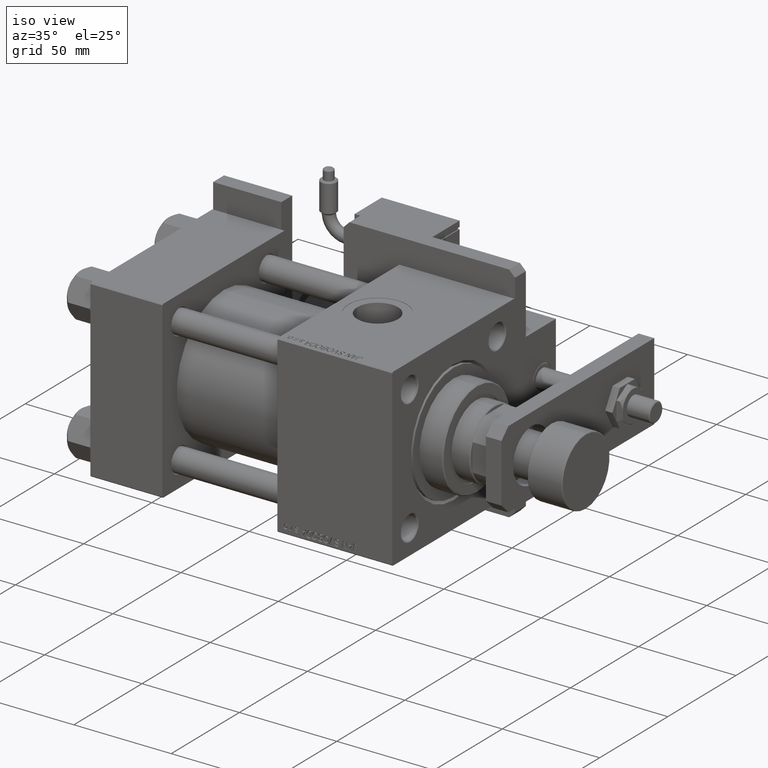
[diagram: clean part render]
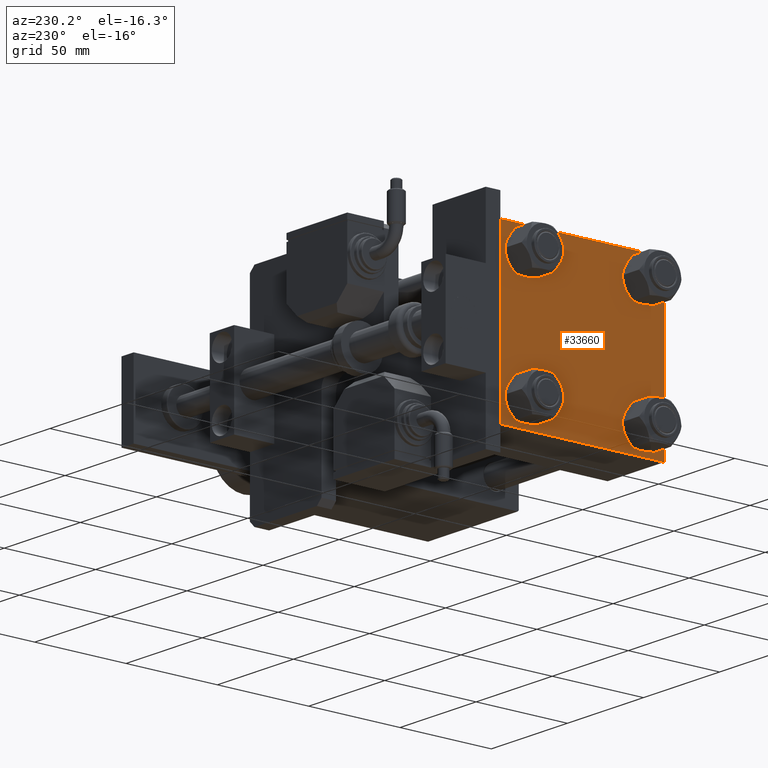
[diagram: tour spotlight — one face highlighted and labeled with its STEP entity id]
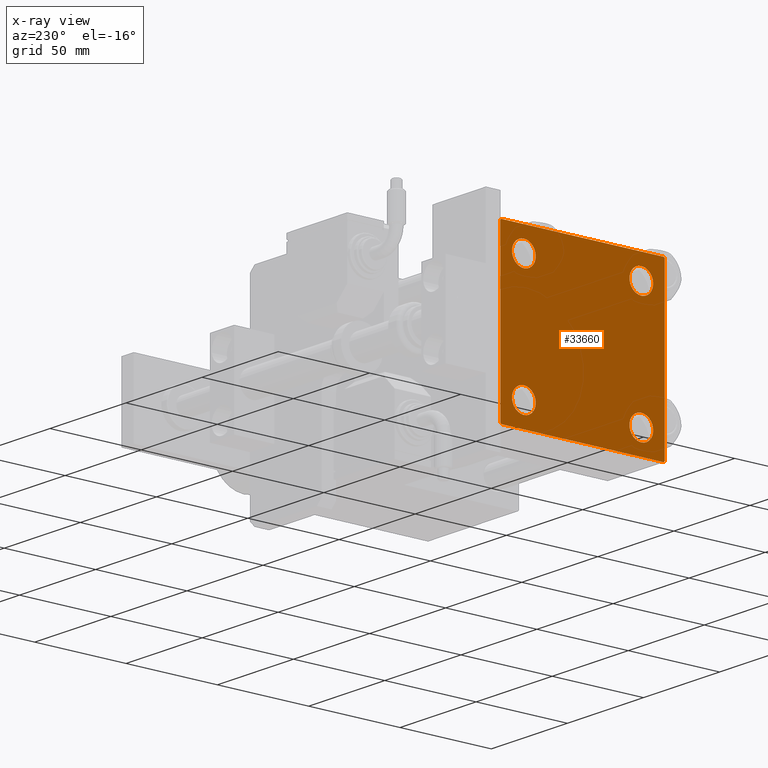
[diagram: x-ray of the same camera — body ghosted, this tour face saturated]
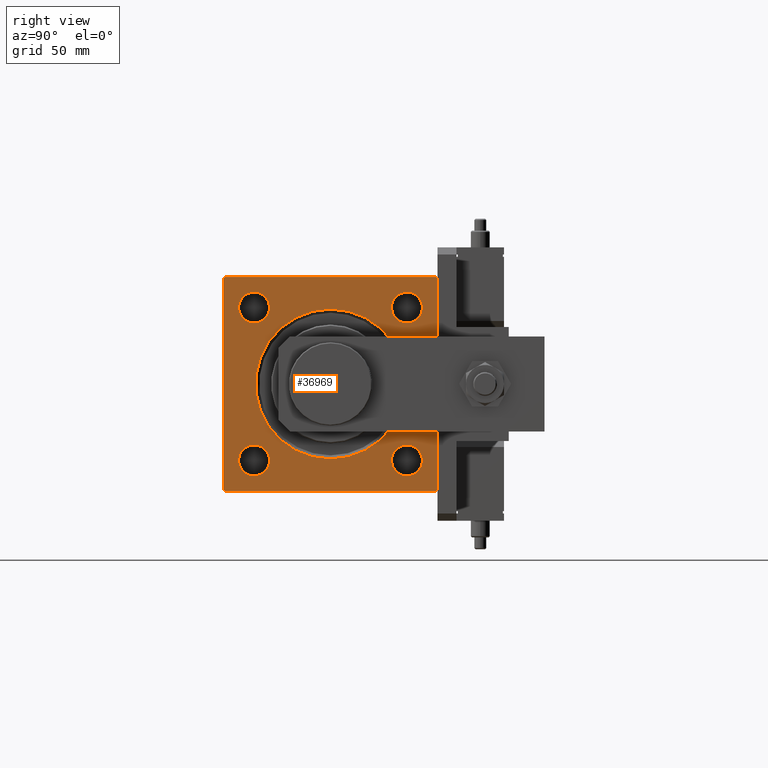
[diagram: tour spotlight — one face highlighted and labeled with its STEP entity id]
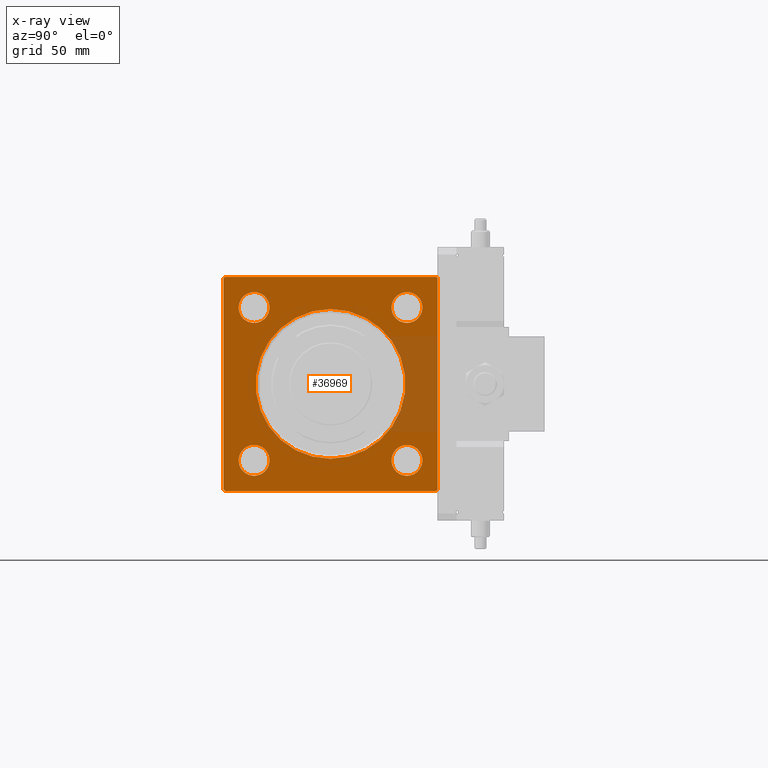
[diagram: x-ray of the same camera — body ghosted, this tour face saturated]
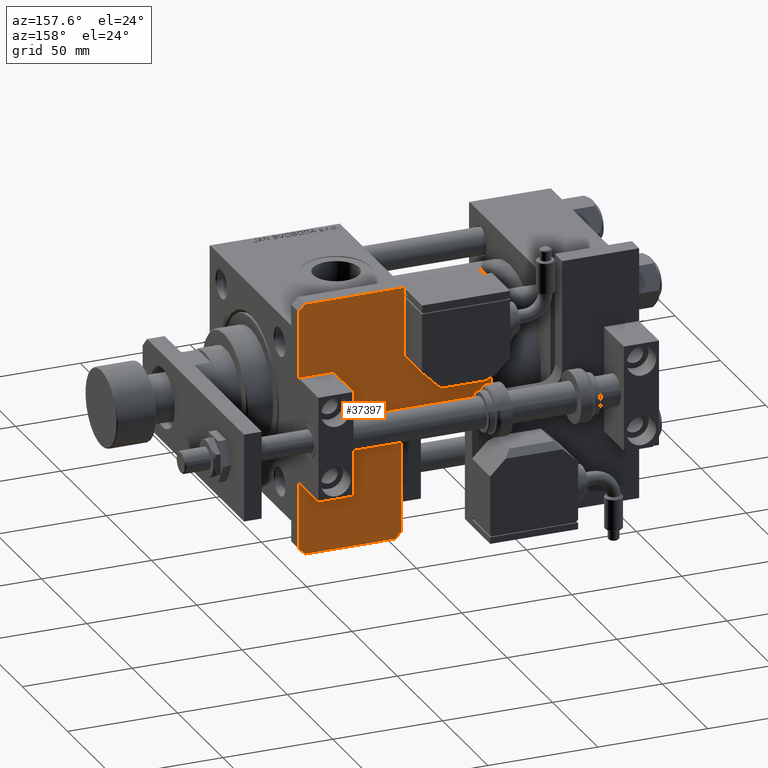
[diagram: tour spotlight — one face highlighted and labeled with its STEP entity id]
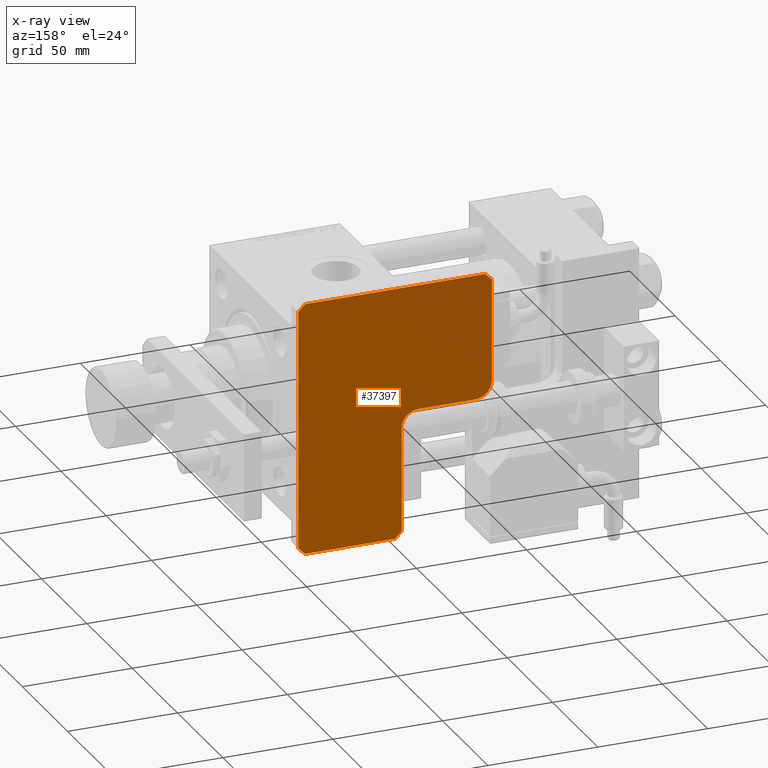
[diagram: x-ray of the same camera — body ghosted, this tour face saturated]
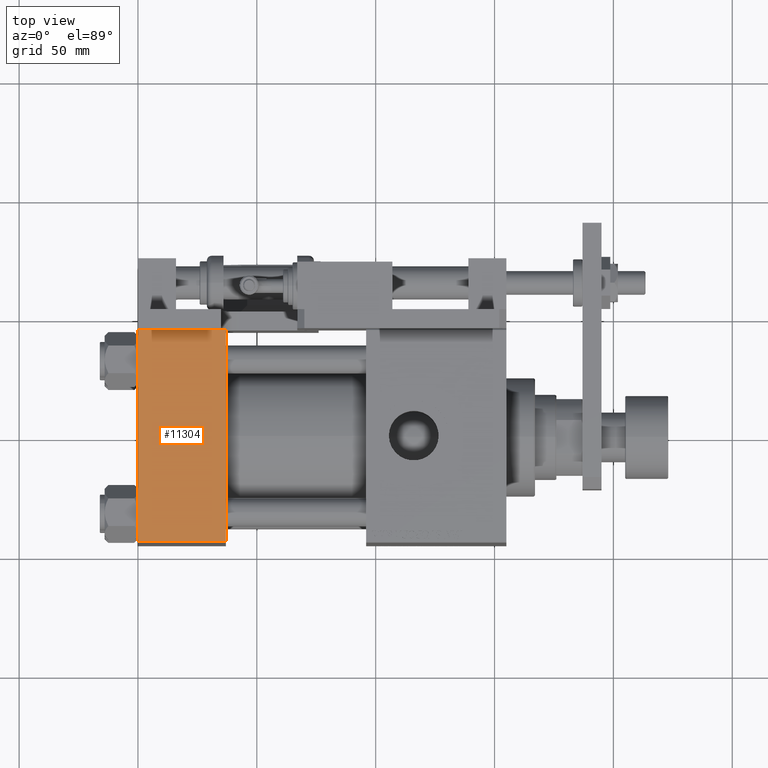
[diagram: tour spotlight — one face highlighted and labeled with its STEP entity id]
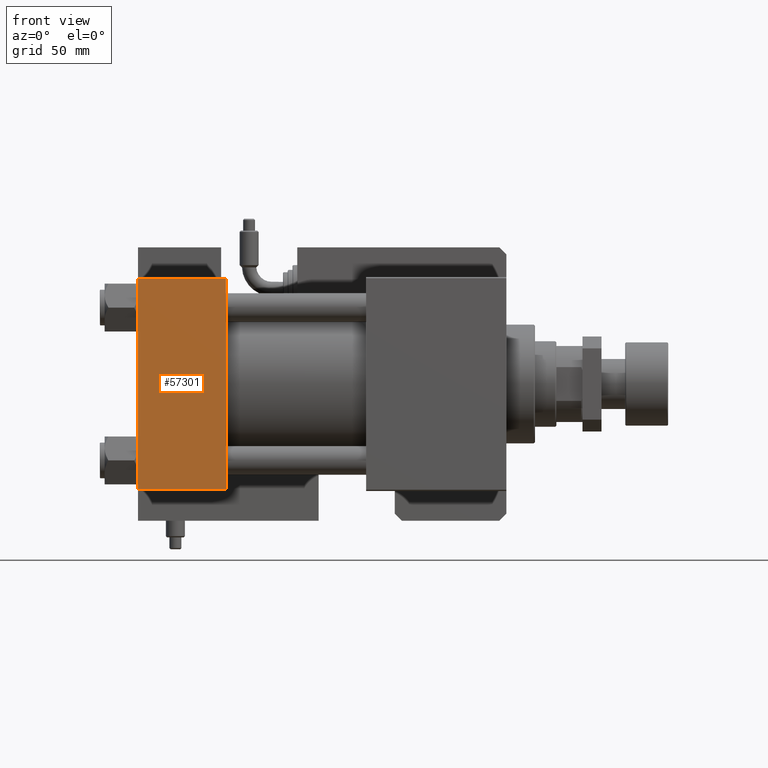
[diagram: tour spotlight — one face highlighted and labeled with its STEP entity id]
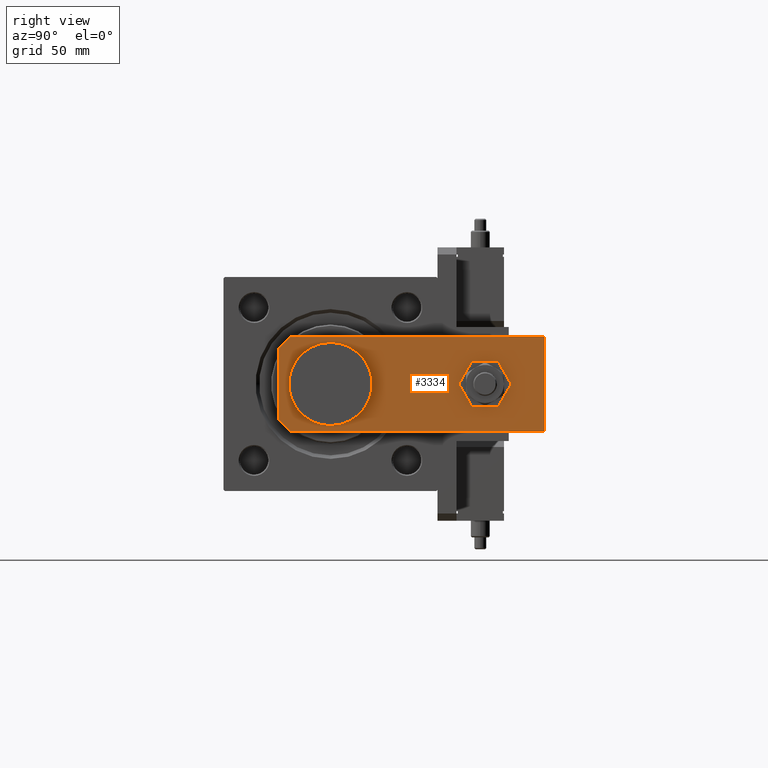
[diagram: tour spotlight — one face highlighted and labeled with its STEP entity id]
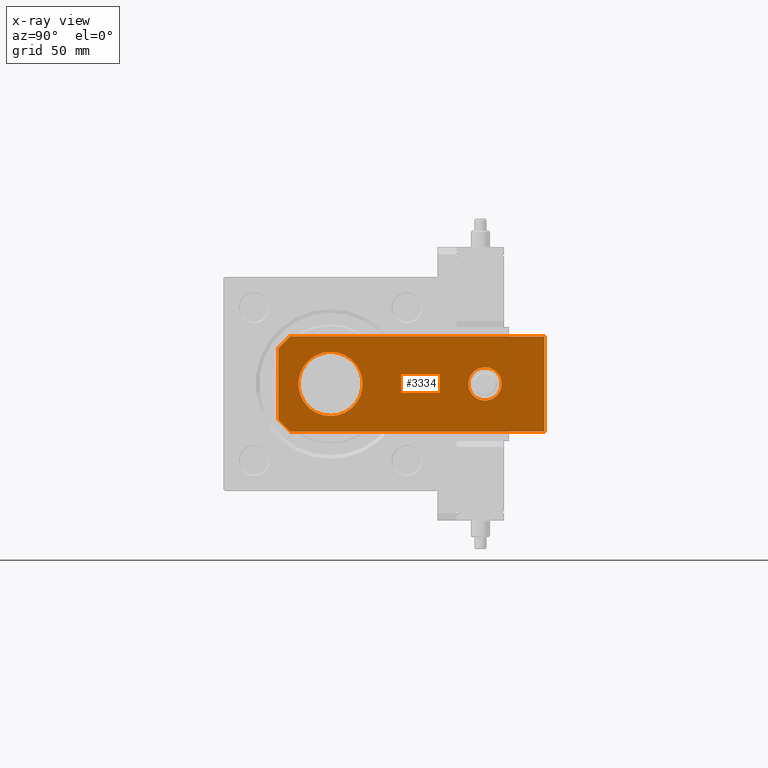
[diagram: x-ray of the same camera — body ghosted, this tour face saturated]
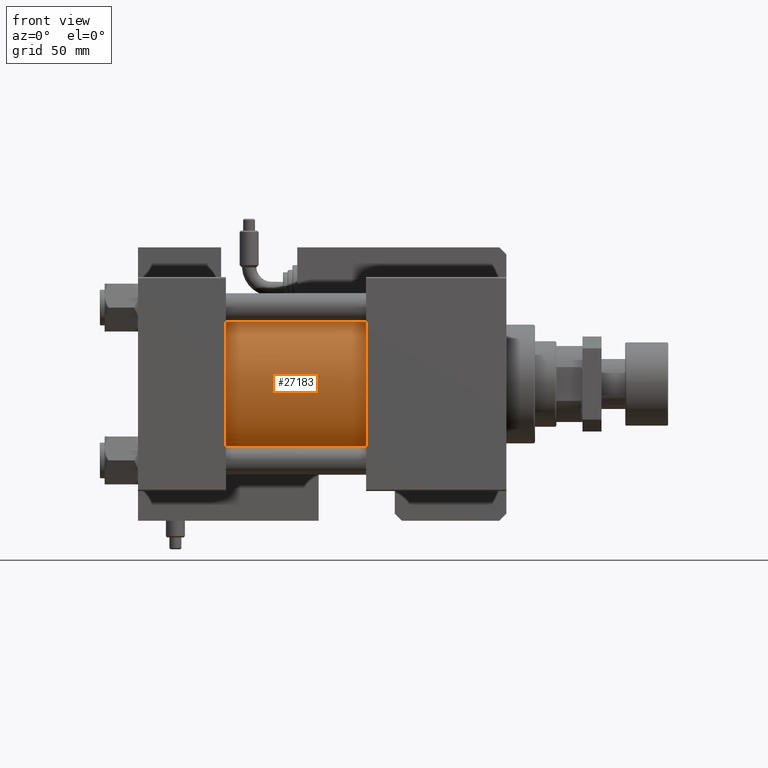
[diagram: tour spotlight — one face highlighted and labeled with its STEP entity id]
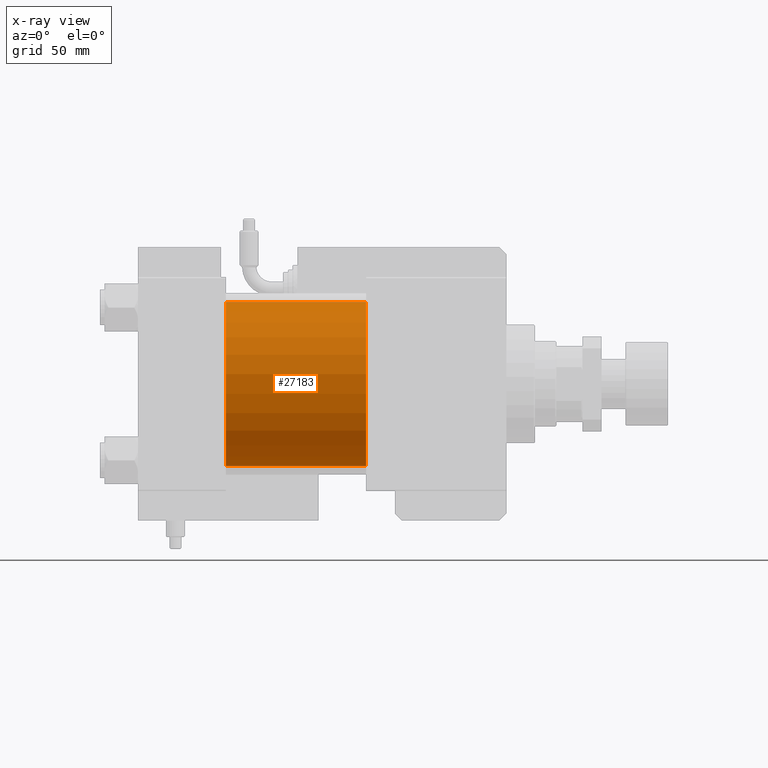
[diagram: x-ray of the same camera — body ghosted, this tour face saturated]
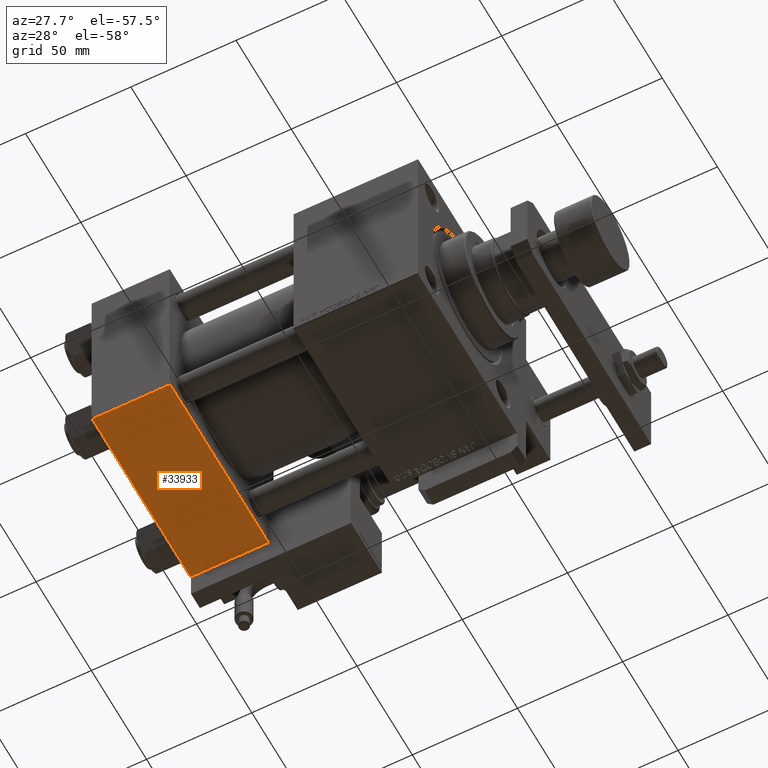
[diagram: tour spotlight — one face highlighted and labeled with its STEP entity id]
A machine part: a face-by-face anatomy tour. The part has 1419 B-rep faces; the first image is the clean iso view, then the 8 largest visible faces are spotlighted one at a time (largest first), each with its STEP entity span.

Face 1 — auxiliary view, entity #33660. An x-ray twin of the same camera follows (body ghosted, this face saturated) — the face is partly hidden behind the body. In plain terms, the highlighted planar face has unit normal (-1, 0, 0).
Definition (entity closure, byte-faithful):
#310 = LINE ( 'NONE', #41298, #19500 ) ;
#441 = CARTESIAN_POINT ( 'NONE',  ( 0.000000000000000000, -32.14999999999997726, 25.65000000000002700 ) ) ;
#589 = CIRCLE ( 'NONE', #15571, 6.499999999999977796 ) ;
#895 = CARTESIAN_POINT ( 'NONE',  ( 0.000000000000000000, 32.14999999999999147, -25.64999999999997726 ) ) ;
#1215 = DIRECTION ( 'NONE',  ( 0.000000000000000000, 0.000000000000000000, 1.000000000000000000 ) ) ;
#2076 = ORIENTED_EDGE ( 'NONE', *, *, #55968, .T. ) ;
#2531 = VERTEX_POINT ( 'NONE', #54863 ) ;
#2677 = VERTEX_POINT ( 'NONE', #55442 ) ;
#2754 = ORIENTED_EDGE ( 'NONE', *, *, #27257, .T. ) ;
#2756 = DIRECTION ( 'NONE',  ( 0.000000000000000000, 0.000000000000000000, -1.000000000000000000 ) ) ;
#2871 = EDGE_CURVE ( 'NONE', #52717, #54028, #30356, .T. ) ;
#2958 = EDGE_CURVE ( 'NONE', #44150, #55323, #19115, .T. ) ;
#2963 = EDGE_CURVE ( 'NONE', #6888, #32865, #20994, .T. ) ;
#3044 = VERTEX_POINT ( 'NONE', #19948 ) ;
#3421 = AXIS2_PLACEMENT_3D ( 'NONE', #3658, #50492, #14766 ) ;
#3658 = CARTESIAN_POINT ( 'NONE',  ( 0.000000000000000000, 0.000000000000000000, 0.000000000000000000 ) ) ;
#3710 = EDGE_LOOP ( 'NONE', ( #9363, #57225 ) ) ;
#5112 = EDGE_LOOP ( 'NONE', ( #28828, #53878 ) ) ;
#5322 = DIRECTION ( 'NONE',  ( 0.000000000000000000, 0.000000000000000000, -1.000000000000000000 ) ) ;
#6091 = VERTEX_POINT ( 'NONE', #56821 ) ;
#6648 = VERTEX_POINT ( 'NONE', #441 ) ;
#6888 = VERTEX_POINT ( 'NONE', #45454 ) ;
#7061 = EDGE_CURVE ( 'NONE', #53484, #6648, #589, .T. ) ;
#7145 = CARTESIAN_POINT ( 'NONE',  ( 0.000000000000000000, 45.00000000000000000, 45.00000000000000711 ) ) ;
#7358 = CARTESIAN_POINT ( 'NONE',  ( -0.000000000000000000, -44.74999999999999289, 44.74999999999999289 ) ) ;
#7910 = AXIS2_PLACEMENT_3D ( 'NONE', #21741, #22892, #40477 ) ;
#8036 = CARTESIAN_POINT ( 'NONE',  ( 0.000000000000000000, 44.74999999999936762, 44.75000000000061107 ) ) ;
#8202 = DIRECTION ( 'NONE',  ( 1.000000000000000000, -0.000000000000000000, 0.000000000000000000 ) ) ;
#8606 = ORIENTED_EDGE ( 'NONE', *, *, #2871, .T. ) ;
#9363 = ORIENTED_EDGE ( 'NONE', *, *, #2963, .T. ) ;
#10046 = ORIENTED_EDGE ( 'NONE', *, *, #32705, .T. ) ;
#10864 = DIRECTION ( 'NONE',  ( 0.000000000000000000, 0.000000000000000000, 1.000000000000000000 ) ) ;
#12100 = DIRECTION ( 'NONE',  ( 1.000000000000000000, -0.000000000000000000, 0.000000000000000000 ) ) ;
#12335 = ORIENTED_EDGE ( 'NONE', *, *, #31503, .T. ) ;
#12597 = AXIS2_PLACEMENT_3D ( 'NONE', #23476, #41044, #1215 ) ;
#12828 = ORIENTED_EDGE ( 'NONE', *, *, #54078, .T. ) ;
#13200 = DIRECTION ( 'NONE',  ( -0.000000000000000000, 0.7071067811865474617, 0.7071067811865474617 ) ) ;
#13603 = FACE_OUTER_BOUND ( 'NONE', #30466, .T. ) ;
#14766 = DIRECTION ( 'NONE',  ( -0.000000000000000000, 0.000000000000000000, 1.000000000000000000 ) ) ;
#15571 = AXIS2_PLACEMENT_3D ( 'NONE', #46042, #28187, #23500 ) ;
#16142 = LINE ( 'NONE', #7358, #40719 ) ;
#16212 = DIRECTION ( 'NONE',  ( 0.000000000000000000, -0.7071067811865672237, 0.7071067811865279218 ) ) ;
#17442 = ORIENTED_EDGE ( 'NONE', *, *, #30861, .T. ) ;
#17558 = ORIENTED_EDGE ( 'NONE', *, *, #27510, .F. ) ;
#17700 = FACE_BOUND ( 'NONE', #48693, .T. ) ;
#17874 = VERTEX_POINT ( 'NONE', #54082 ) ;
#19115 = CIRCLE ( 'NONE', #12597, 6.500000000000019540 ) ;
#19366 = ORIENTED_EDGE ( 'NONE', *, *, #7061, .T. ) ;
#19500 = VECTOR ( 'NONE', #53889, 1000.000000000000114 ) ;
#19755 = LINE ( 'NONE', #37609, #43512 ) ;
#19948 = CARTESIAN_POINT ( 'NONE',  ( 0.000000000000000000, -45.00000000000000000, 44.49999999999998579 ) ) ;
#20087 = AXIS2_PLACEMENT_3D ( 'NONE', #32251, #55086, #10864 ) ;
#20105 = DIRECTION ( 'NONE',  ( 0.000000000000000000, 0.000000000000000000, 1.000000000000000000 ) ) ;
#20994 = CIRCLE ( 'NONE', #20087, 6.499999999999977796 ) ;
#21738 = LINE ( 'NONE', #53352, #48117 ) ;
#21741 = CARTESIAN_POINT ( 'NONE',  ( 0.000000000000000000, 32.14999999999999147, -32.14999999999999858 ) ) ;
#21772 = LINE ( 'NONE', #7145, #25141 ) ;
#21832 = CARTESIAN_POINT ( 'NONE',  ( 0.000000000000000000, 45.00000000000000000, -44.99999999999999289 ) ) ;
#22892 = DIRECTION ( 'NONE',  ( 1.000000000000000000, -0.000000000000000000, 0.000000000000000000 ) ) ;
#23290 = VERTEX_POINT ( 'NONE', #29725 ) ;
#23476 = CARTESIAN_POINT ( 'NONE',  ( 0.000000000000000000, 32.14999999999999147, 32.14999999999999858 ) ) ;
#23483 = CARTESIAN_POINT ( 'NONE',  ( 0.000000000000000000, -45.00000000000000000, 44.99999999999998579 ) ) ;
#23500 = DIRECTION ( 'NONE',  ( 0.000000000000000000, 0.000000000000000000, 1.000000000000000000 ) ) ;
#24510 = CARTESIAN_POINT ( 'NONE',  ( 0.000000000000000000, 32.14999999999999147, 32.14999999999999858 ) ) ;
#25141 = VECTOR ( 'NONE', #2756, 1000.000000000000000 ) ;
#26024 = EDGE_LOOP ( 'NONE', ( #19366, #2754 ) ) ;
#26638 = AXIS2_PLACEMENT_3D ( 'NONE', #24510, #42366, #20105 ) ;
#27257 = EDGE_CURVE ( 'NONE', #6648, #53484, #48038, .T. ) ;
#27510 = EDGE_CURVE ( 'NONE', #3044, #56187, #41052, .T. ) ;
#27680 = VECTOR ( 'NONE', #39087, 999.9999999999998863 ) ;
#27892 = VECTOR ( 'NONE', #39695, 1000.000000000000000 ) ;
#28187 = DIRECTION ( 'NONE',  ( 1.000000000000000000, -0.000000000000000000, 0.000000000000000000 ) ) ;
#28828 = ORIENTED_EDGE ( 'NONE', *, *, #29051, .T. ) ;
#29051 = EDGE_CURVE ( 'NONE', #55323, #44150, #52797, .T. ) ;
#29258 = EDGE_CURVE ( 'NONE', #23290, #2677, #21738, .T. ) ;
#29693 = CARTESIAN_POINT ( 'NONE',  ( 0.000000000000000000, 32.14999999999999147, -32.14999999999999858 ) ) ;
#29725 = CARTESIAN_POINT ( 'NONE',  ( 0.000000000000000000, 44.49999999999997158, 45.00000000000000711 ) ) ;
#30230 = DIRECTION ( 'NONE',  ( 0.000000000000000000, -1.000000000000000000, -2.312964634635742957E-16 ) ) ;
#30338 = EDGE_CURVE ( 'NONE', #6091, #56187, #19755, .T. ) ;
#30356 = CIRCLE ( 'NONE', #7910, 6.500000000000019540 ) ;
#30450 = CARTESIAN_POINT ( 'NONE',  ( 0.000000000000000000, -32.14999999999997726, -32.15000000000000568 ) ) ;
#30466 = EDGE_LOOP ( 'NONE', ( #2076, #12828, #55998, #56238, #17558, #17442, #31030, #10046 ) ) ;
#30861 = EDGE_CURVE ( 'NONE', #3044, #2677, #16142, .T. ) ;
#31011 = CARTESIAN_POINT ( 'NONE',  ( 0.000000000000000000, 32.14999999999999147, 38.65000000000001990 ) ) ;
#31030 = ORIENTED_EDGE ( 'NONE', *, *, #29258, .F. ) ;
#31503 = EDGE_CURVE ( 'NONE', #54028, #52717, #54763, .T. ) ;
#32251 = CARTESIAN_POINT ( 'NONE',  ( 0.000000000000000000, -32.14999999999997726, -32.15000000000000568 ) ) ;
#32705 = EDGE_CURVE ( 'NONE', #23290, #2531, #52260, .T. ) ;
#32865 = VERTEX_POINT ( 'NONE', #41105 ) ;
#33660 = ADVANCED_FACE ( 'NONE', ( #39966, #57810, #17700, #35561, #13603 ), #43775, .T. ) ;
#34034 = AXIS2_PLACEMENT_3D ( 'NONE', #56590, #12100, #42564 ) ;
#35561 = FACE_BOUND ( 'NONE', #5112, .T. ) ;
#37609 = CARTESIAN_POINT ( 'NONE',  ( 0.000000000000000000, -44.74999999999873523, -44.75000000000122924 ) ) ;
#39087 = DIRECTION ( 'NONE',  ( 0.000000000000000000, 0.7071067811865574537, -0.7071067811865376918 ) ) ;
#39695 = DIRECTION ( 'NONE',  ( 0.000000000000000000, -1.000000000000000000, -7.709882115452476934E-17 ) ) ;
#39844 = EDGE_CURVE ( 'NONE', #32865, #6888, #49374, .T. ) ;
#39966 = FACE_BOUND ( 'NONE', #26024, .T. ) ;
#40477 = DIRECTION ( 'NONE',  ( 0.000000000000000000, 0.000000000000000000, 1.000000000000000000 ) ) ;
#40683 = EDGE_CURVE ( 'NONE', #43439, #6091, #45235, .T. ) ;
#40719 = VECTOR ( 'NONE', #13200, 1000.000000000000114 ) ;
#41044 = DIRECTION ( 'NONE',  ( 1.000000000000000000, -0.000000000000000000, 0.000000000000000000 ) ) ;
#41052 = LINE ( 'NONE', #23483, #54600 ) ;
#41105 = CARTESIAN_POINT ( 'NONE',  ( 0.000000000000000000, -32.14999999999997726, -38.64999999999998437 ) ) ;
#41298 = CARTESIAN_POINT ( 'NONE',  ( 0.000000000000000000, 44.74999999999999289, -44.74999999999999289 ) ) ;
#41411 = CARTESIAN_POINT ( 'NONE',  ( 0.000000000000000000, 44.50000000000000000, -44.99999999999999289 ) ) ;
#41655 = CARTESIAN_POINT ( 'NONE',  ( 0.000000000000000000, -45.00000000000000000, -44.49999999999997158 ) ) ;
#42366 = DIRECTION ( 'NONE',  ( 1.000000000000000000, -0.000000000000000000, 0.000000000000000000 ) ) ;
#42564 = DIRECTION ( 'NONE',  ( 0.000000000000000000, 0.000000000000000000, 1.000000000000000000 ) ) ;
#43439 = VERTEX_POINT ( 'NONE', #41411 ) ;
#43512 = VECTOR ( 'NONE', #16212, 1000.000000000000000 ) ;
#43775 = PLANE ( 'NONE',  #3421 ) ;
#43928 = DIRECTION ( 'NONE',  ( 0.000000000000000000, 0.000000000000000000, 1.000000000000000000 ) ) ;
#44150 = VERTEX_POINT ( 'NONE', #54104 ) ;
#45235 = LINE ( 'NONE', #21832, #27892 ) ;
#45454 = CARTESIAN_POINT ( 'NONE',  ( 0.000000000000000000, -32.14999999999997726, -25.65000000000002700 ) ) ;
#46042 = CARTESIAN_POINT ( 'NONE',  ( 0.000000000000000000, -32.14999999999997726, 32.15000000000000568 ) ) ;
#47841 = DIRECTION ( 'NONE',  ( 0.000000000000000000, 0.000000000000000000, 1.000000000000000000 ) ) ;
#48038 = CIRCLE ( 'NONE', #34034, 6.499999999999977796 ) ;
#48117 = VECTOR ( 'NONE', #30230, 1000.000000000000000 ) ;
#48693 = EDGE_LOOP ( 'NONE', ( #12335, #8606 ) ) ;
#49107 = CARTESIAN_POINT ( 'NONE',  ( 0.000000000000000000, 32.14999999999999147, -38.65000000000001990 ) ) ;
#49374 = CIRCLE ( 'NONE', #54044, 6.499999999999977796 ) ;
#50492 = DIRECTION ( 'NONE',  ( -1.000000000000000000, 0.000000000000000000, -0.000000000000000000 ) ) ;
#51956 = AXIS2_PLACEMENT_3D ( 'NONE', #29693, #52799, #47841 ) ;
#52260 = LINE ( 'NONE', #8036, #27680 ) ;
#52717 = VERTEX_POINT ( 'NONE', #49107 ) ;
#52797 = CIRCLE ( 'NONE', #26638, 6.500000000000019540 ) ;
#52799 = DIRECTION ( 'NONE',  ( 1.000000000000000000, -0.000000000000000000, 0.000000000000000000 ) ) ;
#53352 = CARTESIAN_POINT ( 'NONE',  ( 0.000000000000000000, 45.00000000000000000, 45.00000000000000711 ) ) ;
#53484 = VERTEX_POINT ( 'NONE', #57614 ) ;
#53878 = ORIENTED_EDGE ( 'NONE', *, *, #2958, .T. ) ;
#53889 = DIRECTION ( 'NONE',  ( -0.000000000000000000, -0.7071067811865474617, -0.7071067811865474617 ) ) ;
#54028 = VERTEX_POINT ( 'NONE', #895 ) ;
#54044 = AXIS2_PLACEMENT_3D ( 'NONE', #30450, #8202, #43928 ) ;
#54078 = EDGE_CURVE ( 'NONE', #17874, #43439, #310, .T. ) ;
#54082 = CARTESIAN_POINT ( 'NONE',  ( 0.000000000000000000, 45.00000000000000000, -44.49999999999996447 ) ) ;
#54104 = CARTESIAN_POINT ( 'NONE',  ( 0.000000000000000000, 32.14999999999999147, 25.64999999999997726 ) ) ;
#54600 = VECTOR ( 'NONE', #5322, 1000.000000000000000 ) ;
#54763 = CIRCLE ( 'NONE', #51956, 6.500000000000019540 ) ;
#54863 = CARTESIAN_POINT ( 'NONE',  ( 0.000000000000000000, 45.00000000000000000, 44.49999999999999289 ) ) ;
#55086 = DIRECTION ( 'NONE',  ( 1.000000000000000000, -0.000000000000000000, 0.000000000000000000 ) ) ;
#55323 = VERTEX_POINT ( 'NONE', #31011 ) ;
#55442 = CARTESIAN_POINT ( 'NONE',  ( 0.000000000000000000, -44.49999999999997158, 44.99999999999998579 ) ) ;
#55968 = EDGE_CURVE ( 'NONE', #2531, #17874, #21772, .T. ) ;
#55998 = ORIENTED_EDGE ( 'NONE', *, *, #40683, .T. ) ;
#56187 = VERTEX_POINT ( 'NONE', #41655 ) ;
#56238 = ORIENTED_EDGE ( 'NONE', *, *, #30338, .T. ) ;
#56590 = CARTESIAN_POINT ( 'NONE',  ( 0.000000000000000000, -32.14999999999997726, 32.15000000000000568 ) ) ;
#56821 = CARTESIAN_POINT ( 'NONE',  ( 0.000000000000000000, -44.49999999999994316, -45.00000000000000000 ) ) ;
#57225 = ORIENTED_EDGE ( 'NONE', *, *, #39844, .T. ) ;
#57614 = CARTESIAN_POINT ( 'NONE',  ( 0.000000000000000000, -32.14999999999997726, 38.64999999999999147 ) ) ;
#57810 = FACE_BOUND ( 'NONE', #3710, .T. ) ;

Face 2 — right view, entity #36969. An x-ray twin of the same camera follows (body ghosted, this face saturated) — the face is partly hidden behind the body. In plain terms, the highlighted planar face has unit normal (-1, 0, 0).
Definition (entity closure, byte-faithful):
#64 = CARTESIAN_POINT ( 'NONE',  ( 155.0000000000000000, -32.14999999999999858, 38.64999999999997726 ) ) ;
#679 = VERTEX_POINT ( 'NONE', #2168 ) ;
#887 = DIRECTION ( 'NONE',  ( 0.000000000000000000, 0.000000000000000000, 1.000000000000000000 ) ) ;
#1050 = CIRCLE ( 'NONE', #56217, 31.49999999999997158 ) ;
#1497 = DIRECTION ( 'NONE',  ( 0.000000000000000000, -1.000000000000000000, -1.541976423090495387E-16 ) ) ;
#1741 = DIRECTION ( 'NONE',  ( 0.000000000000000000, 0.000000000000000000, 1.000000000000000000 ) ) ;
#2145 = DIRECTION ( 'NONE',  ( -0.000000000000000000, 0.7071067811865474617, 0.7071067811865474617 ) ) ;
#2168 = CARTESIAN_POINT ( 'NONE',  ( 155.0000000000000000, -45.00000000000000000, -44.50000000000002842 ) ) ;
#2279 = CARTESIAN_POINT ( 'NONE',  ( 155.0000000000000000, -32.14999999999999858, -25.65000000000001990 ) ) ;
#2335 = DIRECTION ( 'NONE',  ( -1.000000000000000000, 0.000000000000000000, -0.000000000000000000 ) ) ;
#2474 = VECTOR ( 'NONE', #24928, 1000.000000000000000 ) ;
#2818 = VERTEX_POINT ( 'NONE', #64 ) ;
#3001 = LINE ( 'NONE', #33756, #31455 ) ;
#3078 = VERTEX_POINT ( 'NONE', #34256 ) ;
#3188 = EDGE_CURVE ( 'NONE', #679, #39490, #4371, .T. ) ;
#4017 = FACE_OUTER_BOUND ( 'NONE', #5984, .T. ) ;
#4371 = LINE ( 'NONE', #44203, #46295 ) ;
#5297 = VERTEX_POINT ( 'NONE', #6056 ) ;
#5984 = EDGE_LOOP ( 'NONE', ( #41791, #32547, #50211, #29615, #37239, #35295, #32425, #11921 ) ) ;
#6033 = CARTESIAN_POINT ( 'NONE',  ( 155.0000000000000000, -32.14999999999999858, 25.65000000000001990 ) ) ;
#6056 = CARTESIAN_POINT ( 'NONE',  ( 155.0000000000000000, 32.14999999999999147, -38.64999999999997726 ) ) ;
#6191 = EDGE_CURVE ( 'NONE', #44032, #679, #11467, .T. ) ;
#6530 = AXIS2_PLACEMENT_3D ( 'NONE', #41293, #50074, #887 ) ;
#7688 = DIRECTION ( 'NONE',  ( 0.000000000000000000, -0.7071067811865474617, 0.7071067811865474617 ) ) ;
#7767 = EDGE_CURVE ( 'NONE', #3078, #5297, #39934, .T. ) ;
#7774 = DIRECTION ( 'NONE',  ( -1.000000000000000000, 0.000000000000000000, -0.000000000000000000 ) ) ;
#8422 = FACE_BOUND ( 'NONE', #37713, .T. ) ;
#8691 = CARTESIAN_POINT ( 'NONE',  ( 155.0000000000000000, -32.14999999999999858, -32.14999999999999858 ) ) ;
#9029 = VERTEX_POINT ( 'NONE', #6033 ) ;
#9265 = VERTEX_POINT ( 'NONE', #11796 ) ;
#9605 = CARTESIAN_POINT ( 'NONE',  ( 155.0000000000000000, 0.000000000000000000, 0.000000000000000000 ) ) ;
#9679 = CARTESIAN_POINT ( 'NONE',  ( 155.0000000000000000, 45.00000000000000000, -44.49999999999995737 ) ) ;
#10006 = CIRCLE ( 'NONE', #26843, 6.499999999999977796 ) ;
#10159 = DIRECTION ( 'NONE',  ( -1.000000000000000000, 0.000000000000000000, -0.000000000000000000 ) ) ;
#10868 = VERTEX_POINT ( 'NONE', #9679 ) ;
#11087 = VECTOR ( 'NONE', #2145, 1000.000000000000114 ) ;
#11467 = LINE ( 'NONE', #29608, #2474 ) ;
#11796 = CARTESIAN_POINT ( 'NONE',  ( 155.0000000000000000, 32.14999999999999147, 38.64999999999997726 ) ) ;
#11874 = CARTESIAN_POINT ( 'NONE',  ( 155.0000000000000000, -44.50000000000002842, -45.00000000000000000 ) ) ;
#11892 = VECTOR ( 'NONE', #7688, 1000.000000000000114 ) ;
#11921 = ORIENTED_EDGE ( 'NONE', *, *, #35442, .T. ) ;
#11957 = CARTESIAN_POINT ( 'NONE',  ( 155.0000000000000000, 44.50000000000002842, 45.00000000000001421 ) ) ;
#12022 = EDGE_CURVE ( 'NONE', #9029, #2818, #10006, .T. ) ;
#12077 = DIRECTION ( 'NONE',  ( 0.000000000000000000, 0.000000000000000000, -1.000000000000000000 ) ) ;
#12500 = DIRECTION ( 'NONE',  ( 0.000000000000000000, 0.000000000000000000, 1.000000000000000000 ) ) ;
#12654 = DIRECTION ( 'NONE',  ( -0.000000000000000000, -0.7071067811865474617, -0.7071067811865474617 ) ) ;
#13152 = DIRECTION ( 'NONE',  ( 0.000000000000000000, 0.000000000000000000, 1.000000000000000000 ) ) ;
#13951 = ORIENTED_EDGE ( 'NONE', *, *, #20632, .T. ) ;
#14021 = DIRECTION ( 'NONE',  ( 0.000000000000000000, 0.000000000000000000, 1.000000000000000000 ) ) ;
#14713 = EDGE_CURVE ( 'NONE', #57100, #10868, #41107, .T. ) ;
#15422 = EDGE_CURVE ( 'NONE', #51237, #9265, #27974, .T. ) ;
#15978 = AXIS2_PLACEMENT_3D ( 'NONE', #8691, #48509, #12500 ) ;
#16371 = ORIENTED_EDGE ( 'NONE', *, *, #43240, .T. ) ;
#17014 = ORIENTED_EDGE ( 'NONE', *, *, #43859, .T. ) ;
#17333 = VERTEX_POINT ( 'NONE', #50709 ) ;
#17778 = DIRECTION ( 'NONE',  ( 0.000000000000000000, 0.000000000000000000, 1.000000000000000000 ) ) ;
#18852 = ORIENTED_EDGE ( 'NONE', *, *, #7767, .T. ) ;
#19154 = AXIS2_PLACEMENT_3D ( 'NONE', #50932, #25146, #1741 ) ;
#19432 = CARTESIAN_POINT ( 'NONE',  ( 155.0000000000000000, 0.000000000000000000, -31.49999999999997158 ) ) ;
#19837 = EDGE_CURVE ( 'NONE', #41230, #33253, #42156, .T. ) ;
#20313 = ORIENTED_EDGE ( 'NONE', *, *, #19837, .T. ) ;
#20391 = ORIENTED_EDGE ( 'NONE', *, *, #12022, .T. ) ;
#20585 = CARTESIAN_POINT ( 'NONE',  ( 155.0000000000000000, 44.50000000000002842, 45.00000000000001421 ) ) ;
#20632 = EDGE_CURVE ( 'NONE', #17333, #38788, #1050, .T. ) ;
#20971 = EDGE_LOOP ( 'NONE', ( #20313, #17014 ) ) ;
#21175 = CIRCLE ( 'NONE', #40776, 31.49999999999997158 ) ;
#22270 = ORIENTED_EDGE ( 'NONE', *, *, #28836, .T. ) ;
#22866 = EDGE_CURVE ( 'NONE', #9265, #51237, #38646, .T. ) ;
#22898 = CARTESIAN_POINT ( 'NONE',  ( 155.0000000000000000, 45.00000000000000000, 44.50000000000004263 ) ) ;
#24603 = CARTESIAN_POINT ( 'NONE',  ( 155.0000000000000000, 32.14999999999999147, -32.14999999999999858 ) ) ;
#24928 = DIRECTION ( 'NONE',  ( 0.000000000000000000, 0.000000000000000000, -1.000000000000000000 ) ) ;
#25146 = DIRECTION ( 'NONE',  ( -1.000000000000000000, 0.000000000000000000, -0.000000000000000000 ) ) ;
#25640 = DIRECTION ( 'NONE',  ( 0.000000000000000000, 0.000000000000000000, 1.000000000000000000 ) ) ;
#26352 = EDGE_CURVE ( 'NONE', #57100, #39490, #49544, .T. ) ;
#26355 = DIRECTION ( 'NONE',  ( 0.000000000000000000, 0.7071067811865474617, -0.7071067811865474617 ) ) ;
#26843 = AXIS2_PLACEMENT_3D ( 'NONE', #28062, #49451, #14021 ) ;
#27974 = CIRCLE ( 'NONE', #45740, 6.499999999999977796 ) ;
#28062 = CARTESIAN_POINT ( 'NONE',  ( 155.0000000000000000, -32.14999999999999858, 32.14999999999999858 ) ) ;
#28815 = VERTEX_POINT ( 'NONE', #11957 ) ;
#28836 = EDGE_CURVE ( 'NONE', #5297, #3078, #42529, .T. ) ;
#29070 = DIRECTION ( 'NONE',  ( 0.000000000000000000, 0.000000000000000000, 1.000000000000000000 ) ) ;
#29608 = CARTESIAN_POINT ( 'NONE',  ( 155.0000000000000000, -45.00000000000000000, 45.00000000000000000 ) ) ;
#29615 = ORIENTED_EDGE ( 'NONE', *, *, #14713, .T. ) ;
#29713 = DIRECTION ( 'NONE',  ( 0.000000000000000000, -1.000000000000000000, -1.541976423090495387E-16 ) ) ;
#30226 = CARTESIAN_POINT ( 'NONE',  ( 155.0000000000000000, -45.00000000000000000, 44.50000000000002842 ) ) ;
#31300 = CARTESIAN_POINT ( 'NONE',  ( 155.0000000000000000, 32.14999999999999147, 32.14999999999999858 ) ) ;
#31455 = VECTOR ( 'NONE', #12077, 1000.000000000000000 ) ;
#31777 = CIRCLE ( 'NONE', #6530, 6.499999999999977796 ) ;
#32425 = ORIENTED_EDGE ( 'NONE', *, *, #49277, .T. ) ;
#32451 = CARTESIAN_POINT ( 'NONE',  ( 155.0000000000000000, -32.14999999999999858, -38.64999999999997726 ) ) ;
#32547 = ORIENTED_EDGE ( 'NONE', *, *, #3188, .T. ) ;
#32698 = DIRECTION ( 'NONE',  ( -0.000000000000000000, 0.000000000000000000, 1.000000000000000000 ) ) ;
#33180 = CARTESIAN_POINT ( 'NONE',  ( 155.0000000000000000, 45.00000000000000000, -44.49999999999998579 ) ) ;
#33253 = VERTEX_POINT ( 'NONE', #2279 ) ;
#33756 = CARTESIAN_POINT ( 'NONE',  ( 155.0000000000000000, 45.00000000000000000, 45.00000000000001421 ) ) ;
#34256 = CARTESIAN_POINT ( 'NONE',  ( 155.0000000000000000, 32.14999999999999147, -25.65000000000001990 ) ) ;
#35295 = ORIENTED_EDGE ( 'NONE', *, *, #51840, .T. ) ;
#35442 = EDGE_CURVE ( 'NONE', #39818, #44032, #52760, .T. ) ;
#36465 = VERTEX_POINT ( 'NONE', #22898 ) ;
#36969 = ADVANCED_FACE ( 'NONE', ( #39468, #57309, #48533, #8422, #44144, #4017 ), #39753, .F. ) ;
#37083 = CARTESIAN_POINT ( 'NONE',  ( 155.0000000000000000, 0.000000000000000000, 0.000000000000000000 ) ) ;
#37239 = ORIENTED_EDGE ( 'NONE', *, *, #49649, .F. ) ;
#37713 = EDGE_LOOP ( 'NONE', ( #22270, #18852 ) ) ;
#37841 = CARTESIAN_POINT ( 'NONE',  ( 155.0000000000000000, 0.000000000000000000, 0.000000000000000000 ) ) ;
#38027 = AXIS2_PLACEMENT_3D ( 'NONE', #37083, #10159, #32698 ) ;
#38646 = CIRCLE ( 'NONE', #54739, 6.499999999999977796 ) ;
#38683 = VECTOR ( 'NONE', #1497, 1000.000000000000000 ) ;
#38788 = VERTEX_POINT ( 'NONE', #19432 ) ;
#39468 = FACE_BOUND ( 'NONE', #44585, .T. ) ;
#39490 = VERTEX_POINT ( 'NONE', #11874 ) ;
#39753 = PLANE ( 'NONE',  #38027 ) ;
#39818 = VERTEX_POINT ( 'NONE', #52422 ) ;
#39934 = CIRCLE ( 'NONE', #46462, 6.499999999999977796 ) ;
#40364 = DIRECTION ( 'NONE',  ( -1.000000000000000000, 0.000000000000000000, -0.000000000000000000 ) ) ;
#40776 = AXIS2_PLACEMENT_3D ( 'NONE', #37841, #56278, #29070 ) ;
#41107 = LINE ( 'NONE', #33180, #11087 ) ;
#41230 = VERTEX_POINT ( 'NONE', #32451 ) ;
#41293 = CARTESIAN_POINT ( 'NONE',  ( 155.0000000000000000, -32.14999999999999858, -32.14999999999999858 ) ) ;
#41416 = ORIENTED_EDGE ( 'NONE', *, *, #15422, .T. ) ;
#41791 = ORIENTED_EDGE ( 'NONE', *, *, #6191, .T. ) ;
#42156 = CIRCLE ( 'NONE', #15978, 6.499999999999977796 ) ;
#42529 = CIRCLE ( 'NONE', #19154, 6.499999999999977796 ) ;
#42653 = VECTOR ( 'NONE', #29713, 1000.000000000000000 ) ;
#42777 = EDGE_LOOP ( 'NONE', ( #20391, #16371 ) ) ;
#43240 = EDGE_CURVE ( 'NONE', #2818, #9029, #56095, .T. ) ;
#43859 = EDGE_CURVE ( 'NONE', #33253, #41230, #31777, .T. ) ;
#44032 = VERTEX_POINT ( 'NONE', #57327 ) ;
#44144 = FACE_BOUND ( 'NONE', #55884, .T. ) ;
#44185 = CARTESIAN_POINT ( 'NONE',  ( 155.0000000000000000, 32.14999999999999147, 25.65000000000001990 ) ) ;
#44203 = CARTESIAN_POINT ( 'NONE',  ( 155.0000000000000000, -44.50000000000005684, -45.00000000000000000 ) ) ;
#44414 = CARTESIAN_POINT ( 'NONE',  ( 155.0000000000000000, 32.14999999999999147, 32.14999999999999858 ) ) ;
#44585 = EDGE_LOOP ( 'NONE', ( #41416, #50796 ) ) ;
#45426 = CARTESIAN_POINT ( 'NONE',  ( 155.0000000000000000, 45.00000000000000000, -44.99999999999998579 ) ) ;
#45740 = AXIS2_PLACEMENT_3D ( 'NONE', #44414, #48520, #17778 ) ;
#46295 = VECTOR ( 'NONE', #26355, 1000.000000000000114 ) ;
#46462 = AXIS2_PLACEMENT_3D ( 'NONE', #24603, #2335, #55913 ) ;
#47861 = CARTESIAN_POINT ( 'NONE',  ( 155.0000000000000000, 45.00000000000000000, 45.00000000000001421 ) ) ;
#47896 = CARTESIAN_POINT ( 'NONE',  ( 155.0000000000000000, -32.14999999999999858, 32.14999999999999858 ) ) ;
#48509 = DIRECTION ( 'NONE',  ( -1.000000000000000000, 0.000000000000000000, -0.000000000000000000 ) ) ;
#48520 = DIRECTION ( 'NONE',  ( -1.000000000000000000, 0.000000000000000000, -0.000000000000000000 ) ) ;
#48533 = FACE_BOUND ( 'NONE', #20971, .T. ) ;
#49154 = DIRECTION ( 'NONE',  ( -1.000000000000000000, 0.000000000000000000, -0.000000000000000000 ) ) ;
#49277 = EDGE_CURVE ( 'NONE', #28815, #39818, #57218, .T. ) ;
#49451 = DIRECTION ( 'NONE',  ( -1.000000000000000000, 0.000000000000000000, -0.000000000000000000 ) ) ;
#49544 = LINE ( 'NONE', #45426, #38683 ) ;
#49649 = EDGE_CURVE ( 'NONE', #36465, #10868, #3001, .T. ) ;
#49789 = EDGE_CURVE ( 'NONE', #38788, #17333, #21175, .T. ) ;
#50074 = DIRECTION ( 'NONE',  ( -1.000000000000000000, 0.000000000000000000, -0.000000000000000000 ) ) ;
#50211 = ORIENTED_EDGE ( 'NONE', *, *, #26352, .F. ) ;
#50709 = CARTESIAN_POINT ( 'NONE',  ( 155.0000000000000000, 3.857637417314158745E-15, 31.49999999999997158 ) ) ;
#50796 = ORIENTED_EDGE ( 'NONE', *, *, #22866, .T. ) ;
#50932 = CARTESIAN_POINT ( 'NONE',  ( 155.0000000000000000, 32.14999999999999147, -32.14999999999999858 ) ) ;
#51221 = VECTOR ( 'NONE', #12654, 1000.000000000000114 ) ;
#51237 = VERTEX_POINT ( 'NONE', #44185 ) ;
#51840 = EDGE_CURVE ( 'NONE', #36465, #28815, #56006, .T. ) ;
#52422 = CARTESIAN_POINT ( 'NONE',  ( 155.0000000000000000, -44.50000000000000000, 45.00000000000000000 ) ) ;
#52760 = LINE ( 'NONE', #30226, #51221 ) ;
#54598 = ORIENTED_EDGE ( 'NONE', *, *, #49789, .T. ) ;
#54681 = DIRECTION ( 'NONE',  ( 0.000000000000000000, 0.000000000000000000, 1.000000000000000000 ) ) ;
#54739 = AXIS2_PLACEMENT_3D ( 'NONE', #31300, #49154, #13152 ) ;
#55884 = EDGE_LOOP ( 'NONE', ( #54598, #13951 ) ) ;
#55913 = DIRECTION ( 'NONE',  ( 0.000000000000000000, 0.000000000000000000, 1.000000000000000000 ) ) ;
#56006 = LINE ( 'NONE', #20585, #11892 ) ;
#56095 = CIRCLE ( 'NONE', #56999, 6.499999999999977796 ) ;
#56217 = AXIS2_PLACEMENT_3D ( 'NONE', #9605, #40364, #54681 ) ;
#56278 = DIRECTION ( 'NONE',  ( -1.000000000000000000, 0.000000000000000000, -0.000000000000000000 ) ) ;
#56999 = AXIS2_PLACEMENT_3D ( 'NONE', #47896, #7774, #25640 ) ;
#57100 = VERTEX_POINT ( 'NONE', #57554 ) ;
#57218 = LINE ( 'NONE', #47861, #42653 ) ;
#57309 = FACE_BOUND ( 'NONE', #42777, .T. ) ;
#57327 = CARTESIAN_POINT ( 'NONE',  ( 155.0000000000000000, -45.00000000000000000, 44.50000000000002842 ) ) ;
#57554 = CARTESIAN_POINT ( 'NONE',  ( 155.0000000000000000, 44.50000000000000000, -44.99999999999998579 ) ) ;

Face 3 — auxiliary view, entity #37397. An x-ray twin of the same camera follows (body ghosted, this face saturated) — the face is partly hidden behind the body. In plain terms, the highlighted planar face has unit normal (0, 1, 0).
Definition (entity closure, byte-faithful):
#1132 = CARTESIAN_POINT ( 'NONE',  ( 114.9999999999999858, 43.99999999999998579, 8.000000000000000000 ) ) ;
#1478 = LINE ( 'NONE', #55353, #22282 ) ;
#2617 = EDGE_CURVE ( 'NONE', #38998, #51804, #5114, .T. ) ;
#3349 = DIRECTION ( 'NONE',  ( 0.000000000000000000, 1.000000000000000000, 0.000000000000000000 ) ) ;
#3643 = CARTESIAN_POINT ( 'NONE',  ( 114.9999999999999858, 0.000000000000000000, 8.000000000000000000 ) ) ;
#3720 = CARTESIAN_POINT ( 'NONE',  ( 112.0000000000000142, 46.99999999999998579, 8.000000000000000000 ) ) ;
#4627 = CARTESIAN_POINT ( 'NONE',  ( 0.000000000000000000, 3.000000000000002665, 8.000000000000000000 ) ) ;
#4683 = VECTOR ( 'NONE', #32435, 1000.000000000000000 ) ;
#5114 = CIRCLE ( 'NONE', #49977, 7.500000000000007105 ) ;
#6935 = CARTESIAN_POINT ( 'NONE',  ( 0.000000000000000000, 85.00000000000001421, 8.000000000000000000 ) ) ;
#7172 = LINE ( 'NONE', #3643, #38595 ) ;
#8264 = CARTESIAN_POINT ( 'NONE',  ( 56.99999999999999289, 54.49999999999998579, 8.000000000000000000 ) ) ;
#9052 = LINE ( 'NONE', #36554, #48359 ) ;
#9078 = PLANE ( 'NONE',  #52069 ) ;
#10249 = VECTOR ( 'NONE', #14481, 1000.000000000000114 ) ;
#10651 = DIRECTION ( 'NONE',  ( -0.000000000000000000, 0.000000000000000000, -1.000000000000000000 ) ) ;
#13005 = DIRECTION ( 'NONE',  ( -0.7071067811865507924, -0.7071067811865441310, -0.000000000000000000 ) ) ;
#13117 = VERTEX_POINT ( 'NONE', #28937 ) ;
#13190 = DIRECTION ( 'NONE',  ( 1.000000000000000000, 0.000000000000000000, -0.000000000000000000 ) ) ;
#13714 = CARTESIAN_POINT ( 'NONE',  ( 49.49999999999999289, 80.49999999999998579, 8.000000000000000000 ) ) ;
#14005 = DIRECTION ( 'NONE',  ( -1.000000000000000000, 0.000000000000000000, 0.000000000000000000 ) ) ;
#14481 = DIRECTION ( 'NONE',  ( -0.7071067811865441310, 0.7071067811865507924, -0.000000000000000000 ) ) ;
#14494 = ORIENTED_EDGE ( 'NONE', *, *, #51575, .T. ) ;
#15160 = VERTEX_POINT ( 'NONE', #35703 ) ;
#15775 = AXIS2_PLACEMENT_3D ( 'NONE', #13714, #31575, #22784 ) ;
#16335 = VERTEX_POINT ( 'NONE', #52098 ) ;
#16649 = VERTEX_POINT ( 'NONE', #1132 ) ;
#16798 = VERTEX_POINT ( 'NONE', #3720 ) ;
#16815 = CARTESIAN_POINT ( 'NONE',  ( -42.50000000000000711, 42.50000000000040501, 8.000000000000000000 ) ) ;
#16991 = DIRECTION ( 'NONE',  ( 0.000000000000000000, -0.000000000000000000, 1.000000000000000000 ) ) ;
#17616 = ORIENTED_EDGE ( 'NONE', *, *, #43434, .T. ) ;
#17767 = DIRECTION ( 'NONE',  ( 0.000000000000000000, 1.000000000000000000, 0.000000000000000000 ) ) ;
#18869 = LINE ( 'NONE', #32050, #10249 ) ;
#19073 = ORIENTED_EDGE ( 'NONE', *, *, #40876, .T. ) ;
#21571 = VECTOR ( 'NONE', #13005, 1000.000000000000114 ) ;
#21830 = ORIENTED_EDGE ( 'NONE', *, *, #45758, .T. ) ;
#22282 = VECTOR ( 'NONE', #41901, 1000.000000000000000 ) ;
#22784 = DIRECTION ( 'NONE',  ( 1.000000000000000000, 0.000000000000000000, 0.000000000000000000 ) ) ;
#22786 = LINE ( 'NONE', #23077, #4683 ) ;
#23077 = CARTESIAN_POINT ( 'NONE',  ( 56.99999999999999289, 88.00000000000000000, 8.000000000000000000 ) ) ;
#23377 = EDGE_CURVE ( 'NONE', #54915, #15160, #25252, .T. ) ;
#23649 = CARTESIAN_POINT ( 'NONE',  ( 114.9999999999999858, 46.99999999999998579, 8.000000000000000000 ) ) ;
#23964 = EDGE_CURVE ( 'NONE', #15160, #16649, #7172, .T. ) ;
#24959 = DIRECTION ( 'NONE',  ( 0.7071067811865507924, 0.7071067811865441310, -0.000000000000000000 ) ) ;
#25252 = LINE ( 'NONE', #42538, #34915 ) ;
#25597 = VECTOR ( 'NONE', #49696, 1000.000000000000000 ) ;
#26616 = EDGE_CURVE ( 'NONE', #54471, #56603, #34253, .T. ) ;
#28030 = CARTESIAN_POINT ( 'NONE',  ( 3.000000000000002665, 88.00000000000000000, 8.000000000000000000 ) ) ;
#28189 = VERTEX_POINT ( 'NONE', #28030 ) ;
#28937 = CARTESIAN_POINT ( 'NONE',  ( 49.49999999999999289, 88.00000000000000000, 8.000000000000000000 ) ) ;
#31559 = VERTEX_POINT ( 'NONE', #34077 ) ;
#31575 = DIRECTION ( 'NONE',  ( 0.000000000000000000, -0.000000000000000000, 1.000000000000000000 ) ) ;
#32050 = CARTESIAN_POINT ( 'NONE',  ( 79.50000000000051159, 79.49999999999977263, 8.000000000000000000 ) ) ;
#32435 = DIRECTION ( 'NONE',  ( -1.000000000000000000, 0.000000000000000000, 0.000000000000000000 ) ) ;
#33685 = ORIENTED_EDGE ( 'NONE', *, *, #2617, .T. ) ;
#34077 = CARTESIAN_POINT ( 'NONE',  ( 56.99999999999999289, 80.49999999999997158, 8.000000000000000000 ) ) ;
#34253 = LINE ( 'NONE', #52120, #25597 ) ;
#34915 = VECTOR ( 'NONE', #24959, 1000.000000000000114 ) ;
#34954 = LINE ( 'NONE', #16815, #21571 ) ;
#35119 = ORIENTED_EDGE ( 'NONE', *, *, #38397, .T. ) ;
#35129 = ORIENTED_EDGE ( 'NONE', *, *, #54399, .T. ) ;
#35703 = CARTESIAN_POINT ( 'NONE',  ( 114.9999999999999858, 2.999999999999975131, 8.000000000000000000 ) ) ;
#36554 = CARTESIAN_POINT ( 'NONE',  ( 1.500000000000001332, 1.499999999999987566, 8.000000000000000000 ) ) ;
#37293 = CARTESIAN_POINT ( 'NONE',  ( 64.50000000000000000, 54.49999999999998579, 8.000000000000000000 ) ) ;
#37397 = ADVANCED_FACE ( 'NONE', ( #49191 ), #9078, .T. ) ;
#38397 = EDGE_CURVE ( 'NONE', #56603, #16335, #9052, .T. ) ;
#38595 = VECTOR ( 'NONE', #3349, 1000.000000000000000 ) ;
#38998 = VERTEX_POINT ( 'NONE', #56235 ) ;
#40031 = CARTESIAN_POINT ( 'NONE',  ( 56.99999999999999289, 46.99999999999998579, 8.000000000000000000 ) ) ;
#40065 = CIRCLE ( 'NONE', #15775, 7.500000000000000000 ) ;
#40282 = ORIENTED_EDGE ( 'NONE', *, *, #23377, .T. ) ;
#40642 = LINE ( 'NONE', #23649, #54250 ) ;
#40876 = EDGE_CURVE ( 'NONE', #16335, #54915, #1478, .T. ) ;
#41901 = DIRECTION ( 'NONE',  ( 1.000000000000000000, 0.000000000000000000, 0.000000000000000000 ) ) ;
#42320 = CARTESIAN_POINT ( 'NONE',  ( 111.9999999999999858, 0.000000000000000000, 8.000000000000000000 ) ) ;
#42538 = CARTESIAN_POINT ( 'NONE',  ( 55.99999999999947420, -55.99999999999999289, 8.000000000000000000 ) ) ;
#43434 = EDGE_CURVE ( 'NONE', #16649, #16798, #18869, .T. ) ;
#44177 = EDGE_CURVE ( 'NONE', #16798, #38998, #40642, .T. ) ;
#44302 = ORIENTED_EDGE ( 'NONE', *, *, #45132, .T. ) ;
#45086 = ORIENTED_EDGE ( 'NONE', *, *, #44177, .T. ) ;
#45132 = EDGE_CURVE ( 'NONE', #13117, #28189, #22786, .T. ) ;
#45640 = ORIENTED_EDGE ( 'NONE', *, *, #23964, .T. ) ;
#45758 = EDGE_CURVE ( 'NONE', #28189, #54471, #34954, .T. ) ;
#48359 = VECTOR ( 'NONE', #54132, 1000.000000000000114 ) ;
#49191 = FACE_OUTER_BOUND ( 'NONE', #54594, .T. ) ;
#49696 = DIRECTION ( 'NONE',  ( 0.000000000000000000, -1.000000000000000000, 0.000000000000000000 ) ) ;
#49977 = AXIS2_PLACEMENT_3D ( 'NONE', #37293, #10651, #55154 ) ;
#51575 = EDGE_CURVE ( 'NONE', #51804, #31559, #52327, .T. ) ;
#51804 = VERTEX_POINT ( 'NONE', #8264 ) ;
#52069 = AXIS2_PLACEMENT_3D ( 'NONE', #52995, #16991, #13190 ) ;
#52098 = CARTESIAN_POINT ( 'NONE',  ( 2.999999999999975131, 0.000000000000000000, 8.000000000000000000 ) ) ;
#52120 = CARTESIAN_POINT ( 'NONE',  ( 0.000000000000000000, 88.00000000000000000, 8.000000000000000000 ) ) ;
#52327 = LINE ( 'NONE', #40031, #53007 ) ;
#52995 = CARTESIAN_POINT ( 'NONE',  ( 0.000000000000000000, 0.000000000000000000, 8.000000000000000000 ) ) ;
#53007 = VECTOR ( 'NONE', #17767, 1000.000000000000000 ) ;
#54132 = DIRECTION ( 'NONE',  ( 0.7071067811865441310, -0.7071067811865507924, -0.000000000000000000 ) ) ;
#54250 = VECTOR ( 'NONE', #14005, 1000.000000000000000 ) ;
#54261 = ORIENTED_EDGE ( 'NONE', *, *, #26616, .T. ) ;
#54399 = EDGE_CURVE ( 'NONE', #31559, #13117, #40065, .T. ) ;
#54471 = VERTEX_POINT ( 'NONE', #6935 ) ;
#54594 = EDGE_LOOP ( 'NONE', ( #44302, #21830, #54261, #35119, #19073, #40282, #45640, #17616, #45086, #33685, #14494, #35129 ) ) ;
#54915 = VERTEX_POINT ( 'NONE', #42320 ) ;
#55154 = DIRECTION ( 'NONE',  ( 1.000000000000000000, 0.000000000000000000, 0.000000000000000000 ) ) ;
#55353 = CARTESIAN_POINT ( 'NONE',  ( 0.000000000000000000, 0.000000000000000000, 8.000000000000000000 ) ) ;
#56235 = CARTESIAN_POINT ( 'NONE',  ( 64.50000000000000000, 46.99999999999998579, 8.000000000000000000 ) ) ;
#56603 = VERTEX_POINT ( 'NONE', #4627 ) ;

Face 4 — top view, entity #11304. In plain terms, the highlighted planar face has unit normal (0, 0, -1).
Definition (entity closure, byte-faithful):
#234 = EDGE_CURVE ( 'NONE', #30196, #23290, #53505, .T. ) ;
#1323 = DIRECTION ( 'NONE',  ( 0.000000000000000000, 1.000000000000000000, 2.312964634635742957E-16 ) ) ;
#2677 = VERTEX_POINT ( 'NONE', #55442 ) ;
#3263 = VECTOR ( 'NONE', #25698, 1000.000000000000000 ) ;
#3366 = EDGE_CURVE ( 'NONE', #2677, #43001, #28952, .T. ) ;
#3453 = EDGE_CURVE ( 'NONE', #30196, #43001, #29237, .T. ) ;
#4100 = ORIENTED_EDGE ( 'NONE', *, *, #3366, .T. ) ;
#5719 = FACE_OUTER_BOUND ( 'NONE', #37152, .T. ) ;
#6368 = ORIENTED_EDGE ( 'NONE', *, *, #29258, .T. ) ;
#6990 = VECTOR ( 'NONE', #47091, 1000.000000000000000 ) ;
#11304 = ADVANCED_FACE ( 'NONE', ( #5719 ), #23586, .F. ) ;
#12563 = ORIENTED_EDGE ( 'NONE', *, *, #3453, .F. ) ;
#13404 = VECTOR ( 'NONE', #40342, 1000.000000000000000 ) ;
#15371 = CARTESIAN_POINT ( 'NONE',  ( 37.00000000000000000, 45.00000000000000000, 45.00000000000000711 ) ) ;
#15470 = CARTESIAN_POINT ( 'NONE',  ( 37.00000000000000000, 45.00000000000000000, 45.00000000000000711 ) ) ;
#21738 = LINE ( 'NONE', #53352, #48117 ) ;
#23127 = AXIS2_PLACEMENT_3D ( 'NONE', #15371, #41436, #1323 ) ;
#23290 = VERTEX_POINT ( 'NONE', #29725 ) ;
#23586 = PLANE ( 'NONE',  #23127 ) ;
#25698 = DIRECTION ( 'NONE',  ( 1.000000000000000000, 0.000000000000000000, 0.000000000000000000 ) ) ;
#28952 = LINE ( 'NONE', #52344, #3263 ) ;
#29237 = LINE ( 'NONE', #15470, #6990 ) ;
#29258 = EDGE_CURVE ( 'NONE', #23290, #2677, #21738, .T. ) ;
#29725 = CARTESIAN_POINT ( 'NONE',  ( 0.000000000000000000, 44.49999999999997158, 45.00000000000000711 ) ) ;
#30196 = VERTEX_POINT ( 'NONE', #35291 ) ;
#30230 = DIRECTION ( 'NONE',  ( 0.000000000000000000, -1.000000000000000000, -2.312964634635742957E-16 ) ) ;
#32121 = CARTESIAN_POINT ( 'NONE',  ( 0.000000000000000000, 44.49999999999997158, 45.00000000000000711 ) ) ;
#35291 = CARTESIAN_POINT ( 'NONE',  ( 37.00000000000000000, 44.49999999999997158, 45.00000000000000711 ) ) ;
#37152 = EDGE_LOOP ( 'NONE', ( #6368, #4100, #12563, #56320 ) ) ;
#40342 = DIRECTION ( 'NONE',  ( -1.000000000000000000, 0.000000000000000000, 0.000000000000000000 ) ) ;
#41436 = DIRECTION ( 'NONE',  ( 0.000000000000000000, 2.312964634635742957E-16, -1.000000000000000000 ) ) ;
#43001 = VERTEX_POINT ( 'NONE', #54085 ) ;
#47091 = DIRECTION ( 'NONE',  ( 0.000000000000000000, -1.000000000000000000, -2.312964634635742957E-16 ) ) ;
#48117 = VECTOR ( 'NONE', #30230, 1000.000000000000000 ) ;
#52344 = CARTESIAN_POINT ( 'NONE',  ( 37.00000000000000000, -44.50000000000000000, 44.99999999999998579 ) ) ;
#53352 = CARTESIAN_POINT ( 'NONE',  ( 0.000000000000000000, 45.00000000000000000, 45.00000000000000711 ) ) ;
#53505 = LINE ( 'NONE', #32121, #13404 ) ;
#54085 = CARTESIAN_POINT ( 'NONE',  ( 37.00000000000000000, -44.49999999999997158, 44.99999999999998579 ) ) ;
#55442 = CARTESIAN_POINT ( 'NONE',  ( 0.000000000000000000, -44.49999999999997158, 44.99999999999998579 ) ) ;
#56320 = ORIENTED_EDGE ( 'NONE', *, *, #234, .T. ) ;

Face 5 — front view, entity #57301. In plain terms, the highlighted planar face has unit normal (0, 1, 0).
Definition (entity closure, byte-faithful):
#418 = ORIENTED_EDGE ( 'NONE', *, *, #2130, .T. ) ;
#439 = EDGE_CURVE ( 'NONE', #56187, #1927, #48758, .T. ) ;
#946 = DIRECTION ( 'NONE',  ( 0.000000000000000000, 0.000000000000000000, -1.000000000000000000 ) ) ;
#1927 = VERTEX_POINT ( 'NONE', #47073 ) ;
#2130 = EDGE_CURVE ( 'NONE', #53012, #3044, #32385, .T. ) ;
#2329 = PLANE ( 'NONE',  #44737 ) ;
#3044 = VERTEX_POINT ( 'NONE', #19948 ) ;
#3670 = DIRECTION ( 'NONE',  ( 1.000000000000000000, 0.000000000000000000, 0.000000000000000000 ) ) ;
#5322 = DIRECTION ( 'NONE',  ( 0.000000000000000000, 0.000000000000000000, -1.000000000000000000 ) ) ;
#6050 = EDGE_CURVE ( 'NONE', #53012, #1927, #32848, .T. ) ;
#6838 = VECTOR ( 'NONE', #3670, 1000.000000000000000 ) ;
#19948 = CARTESIAN_POINT ( 'NONE',  ( 0.000000000000000000, -45.00000000000000000, 44.49999999999998579 ) ) ;
#21216 = ORIENTED_EDGE ( 'NONE', *, *, #439, .T. ) ;
#23000 = VECTOR ( 'NONE', #946, 1000.000000000000000 ) ;
#23483 = CARTESIAN_POINT ( 'NONE',  ( 0.000000000000000000, -45.00000000000000000, 44.99999999999998579 ) ) ;
#25069 = CARTESIAN_POINT ( 'NONE',  ( 37.00000000000000000, -45.00000000000000000, -44.50000000000000000 ) ) ;
#26554 = DIRECTION ( 'NONE',  ( -1.000000000000000000, 0.000000000000000000, 0.000000000000000000 ) ) ;
#27510 = EDGE_CURVE ( 'NONE', #3044, #56187, #41052, .T. ) ;
#28412 = CARTESIAN_POINT ( 'NONE',  ( 37.00000000000000000, -45.00000000000000000, 44.99999999999998579 ) ) ;
#29045 = CARTESIAN_POINT ( 'NONE',  ( 37.00000000000000000, -45.00000000000000000, 44.99999999999998579 ) ) ;
#30199 = ORIENTED_EDGE ( 'NONE', *, *, #27510, .T. ) ;
#31821 = CARTESIAN_POINT ( 'NONE',  ( 37.00000000000000000, -45.00000000000000000, 44.49999999999998579 ) ) ;
#32385 = LINE ( 'NONE', #31821, #34040 ) ;
#32848 = LINE ( 'NONE', #29045, #23000 ) ;
#34040 = VECTOR ( 'NONE', #26554, 1000.000000000000000 ) ;
#41052 = LINE ( 'NONE', #23483, #54600 ) ;
#41104 = ORIENTED_EDGE ( 'NONE', *, *, #6050, .F. ) ;
#41655 = CARTESIAN_POINT ( 'NONE',  ( 0.000000000000000000, -45.00000000000000000, -44.49999999999997158 ) ) ;
#41952 = CARTESIAN_POINT ( 'NONE',  ( 37.00000000000000000, -45.00000000000000000, 44.49999999999998579 ) ) ;
#44737 = AXIS2_PLACEMENT_3D ( 'NONE', #28412, #55620, #46272 ) ;
#46272 = DIRECTION ( 'NONE',  ( 0.000000000000000000, -0.000000000000000000, 1.000000000000000000 ) ) ;
#47073 = CARTESIAN_POINT ( 'NONE',  ( 37.00000000000000000, -45.00000000000000000, -44.49999999999997158 ) ) ;
#48758 = LINE ( 'NONE', #25069, #6838 ) ;
#53012 = VERTEX_POINT ( 'NONE', #41952 ) ;
#54600 = VECTOR ( 'NONE', #5322, 1000.000000000000000 ) ;
#54762 = FACE_OUTER_BOUND ( 'NONE', #57790, .T. ) ;
#55620 = DIRECTION ( 'NONE',  ( -0.000000000000000000, 1.000000000000000000, 0.000000000000000000 ) ) ;
#56187 = VERTEX_POINT ( 'NONE', #41655 ) ;
#57301 = ADVANCED_FACE ( 'NONE', ( #54762 ), #2329, .F. ) ;
#57790 = EDGE_LOOP ( 'NONE', ( #30199, #21216, #41104, #418 ) ) ;

Face 6 — right view, entity #3334. An x-ray twin of the same camera follows (body ghosted, this face saturated) — the face is partly hidden behind the body. In plain terms, the highlighted planar face has unit normal (1, 0, -0).
Definition (entity closure, byte-faithful):
#47 = DIRECTION ( 'NONE',  ( -1.548860246407863583E-16, 1.000000000000000000, 0.000000000000000000 ) ) ;
#544 = CIRCLE ( 'NONE', #36079, 13.50000000000000000 ) ;
#658 = VERTEX_POINT ( 'NONE', #42294 ) ;
#925 = CARTESIAN_POINT ( 'NONE',  ( -20.00000000000000355, 112.0000000000000000, 8.000000000000000000 ) ) ;
#988 = VERTEX_POINT ( 'NONE', #5620 ) ;
#1212 = LINE ( 'NONE', #925, #42404 ) ;
#1256 = VERTEX_POINT ( 'NONE', #21515 ) ;
#2888 = CARTESIAN_POINT ( 'NONE',  ( -2.000174246416480903E-16, 87.00000000000000000, 8.000000000000000000 ) ) ;
#3334 = ADVANCED_FACE ( 'NONE', ( #19871, #20154, #30092 ), #16617, .T. ) ;
#4508 = CARTESIAN_POINT ( 'NONE',  ( -2.000174246416480903E-16, 87.00000000000000000, 8.000000000000000000 ) ) ;
#4739 = DIRECTION ( 'NONE',  ( -9.293161478447180511E-17, -1.000000000000000000, 0.000000000000000000 ) ) ;
#4754 = VERTEX_POINT ( 'NONE', #34348 ) ;
#5592 = EDGE_LOOP ( 'NONE', ( #54089, #18055 ) ) ;
#5620 = CARTESIAN_POINT ( 'NONE',  ( -13.50000000000000000, 21.99999999999999289, 8.000000000000000000 ) ) ;
#5866 = CARTESIAN_POINT ( 'NONE',  ( -15.00000000000001066, 0.000000000000000000, 8.000000000000000000 ) ) ;
#6984 = DIRECTION ( 'NONE',  ( 1.000000000000000000, 0.000000000000000000, 0.000000000000000000 ) ) ;
#7044 = LINE ( 'NONE', #47160, #57929 ) ;
#7325 = CARTESIAN_POINT ( 'NONE',  ( 7.000000000000004441, 87.00000000000000000, 8.000000000000000000 ) ) ;
#8629 = DIRECTION ( 'NONE',  ( 0.000000000000000000, 0.000000000000000000, 1.000000000000000000 ) ) ;
#10504 = ORIENTED_EDGE ( 'NONE', *, *, #14649, .F. ) ;
#11945 = EDGE_CURVE ( 'NONE', #988, #658, #12836, .T. ) ;
#12505 = EDGE_CURVE ( 'NONE', #1256, #53139, #17614, .T. ) ;
#12836 = CIRCLE ( 'NONE', #44601, 13.50000000000000000 ) ;
#12974 = AXIS2_PLACEMENT_3D ( 'NONE', #4508, #8629, #40252 ) ;
#13004 = CARTESIAN_POINT ( 'NONE',  ( 15.00000000000001066, 0.000000000000000000, 8.000000000000000000 ) ) ;
#13098 = ORIENTED_EDGE ( 'NONE', *, *, #43536, .T. ) ;
#14649 = EDGE_CURVE ( 'NONE', #41816, #49919, #41011, .T. ) ;
#15461 = EDGE_LOOP ( 'NONE', ( #41875, #10504 ) ) ;
#16617 = PLANE ( 'NONE',  #43484 ) ;
#17450 = EDGE_CURVE ( 'NONE', #4754, #57323, #7044, .T. ) ;
#17510 = VECTOR ( 'NONE', #47, 1000.000000000000000 ) ;
#17583 = CARTESIAN_POINT ( 'NONE',  ( 19.99999999999999645, 112.0000000000000000, 8.000000000000000000 ) ) ;
#17614 = LINE ( 'NONE', #39875, #17510 ) ;
#18055 = ORIENTED_EDGE ( 'NONE', *, *, #31433, .F. ) ;
#19871 = FACE_BOUND ( 'NONE', #15461, .T. ) ;
#20154 = FACE_OUTER_BOUND ( 'NONE', #35535, .T. ) ;
#21515 = CARTESIAN_POINT ( 'NONE',  ( 20.00000000000001421, 4.999999999999989342, 8.000000000000000000 ) ) ;
#21642 = DIRECTION ( 'NONE',  ( 1.000000000000000000, 0.000000000000000000, 0.000000000000000000 ) ) ;
#22066 = VERTEX_POINT ( 'NONE', #13004 ) ;
#22195 = ORIENTED_EDGE ( 'NONE', *, *, #26335, .T. ) ;
#24376 = DIRECTION ( 'NONE',  ( 1.000000000000000000, 0.000000000000000000, 0.000000000000000000 ) ) ;
#25201 = DIRECTION ( 'NONE',  ( 0.7071067811865465735, -0.7071067811865485719, 0.000000000000000000 ) ) ;
#25418 = CARTESIAN_POINT ( 'NONE',  ( 0.000000000000000000, 0.000000000000000000, 8.000000000000000000 ) ) ;
#26032 = CARTESIAN_POINT ( 'NONE',  ( 0.000000000000000000, 21.99999999999999289, 8.000000000000000000 ) ) ;
#26335 = EDGE_CURVE ( 'NONE', #47162, #4754, #1212, .T. ) ;
#28791 = LINE ( 'NONE', #51334, #44524 ) ;
#28797 = EDGE_CURVE ( 'NONE', #49919, #41816, #49046, .T. ) ;
#29086 = DIRECTION ( 'NONE',  ( 0.7071067811865485719, 0.7071067811865465735, -0.000000000000000000 ) ) ;
#29140 = VECTOR ( 'NONE', #43742, 1000.000000000000000 ) ;
#29989 = LINE ( 'NONE', #56340, #29140 ) ;
#30092 = FACE_BOUND ( 'NONE', #5592, .T. ) ;
#31433 = EDGE_CURVE ( 'NONE', #658, #988, #544, .T. ) ;
#32730 = ORIENTED_EDGE ( 'NONE', *, *, #12505, .T. ) ;
#33212 = DIRECTION ( 'NONE',  ( 1.000000000000000000, 0.000000000000000000, 0.000000000000000000 ) ) ;
#34348 = CARTESIAN_POINT ( 'NONE',  ( -20.00000000000001421, 5.000000000000018652, 8.000000000000000000 ) ) ;
#35535 = EDGE_LOOP ( 'NONE', ( #22195, #53735, #13098, #47722, #32730, #38814 ) ) ;
#36079 = AXIS2_PLACEMENT_3D ( 'NONE', #37614, #51373, #33212 ) ;
#37614 = CARTESIAN_POINT ( 'NONE',  ( 0.000000000000000000, 21.99999999999999289, 8.000000000000000000 ) ) ;
#38303 = DIRECTION ( 'NONE',  ( -0.000000000000000000, 0.000000000000000000, 1.000000000000000000 ) ) ;
#38408 = LINE ( 'NONE', #46915, #49545 ) ;
#38814 = ORIENTED_EDGE ( 'NONE', *, *, #47311, .T. ) ;
#39875 = CARTESIAN_POINT ( 'NONE',  ( 20.00000000000001421, 0.000000000000000000, 8.000000000000000000 ) ) ;
#40252 = DIRECTION ( 'NONE',  ( 1.000000000000000000, 0.000000000000000000, 0.000000000000000000 ) ) ;
#41011 = CIRCLE ( 'NONE', #12974, 7.000000000000004441 ) ;
#41816 = VERTEX_POINT ( 'NONE', #7325 ) ;
#41875 = ORIENTED_EDGE ( 'NONE', *, *, #28797, .F. ) ;
#42294 = CARTESIAN_POINT ( 'NONE',  ( 13.50000000000000000, 21.99999999999999289, 8.000000000000000000 ) ) ;
#42404 = VECTOR ( 'NONE', #4739, 1000.000000000000000 ) ;
#43382 = CARTESIAN_POINT ( 'NONE',  ( -7.000000000000004441, 87.00000000000000000, 8.000000000000000000 ) ) ;
#43484 = AXIS2_PLACEMENT_3D ( 'NONE', #25418, #38303, #51492 ) ;
#43536 = EDGE_CURVE ( 'NONE', #57323, #22066, #38408, .T. ) ;
#43742 = DIRECTION ( 'NONE',  ( -1.000000000000000000, 0.000000000000000000, 0.000000000000000000 ) ) ;
#43890 = DIRECTION ( 'NONE',  ( 0.000000000000000000, 0.000000000000000000, 1.000000000000000000 ) ) ;
#44524 = VECTOR ( 'NONE', #29086, 1000.000000000000000 ) ;
#44601 = AXIS2_PLACEMENT_3D ( 'NONE', #26032, #43890, #21642 ) ;
#46537 = DIRECTION ( 'NONE',  ( 0.000000000000000000, 0.000000000000000000, 1.000000000000000000 ) ) ;
#46915 = CARTESIAN_POINT ( 'NONE',  ( -20.00000000000001421, 0.000000000000000000, 8.000000000000000000 ) ) ;
#47160 = CARTESIAN_POINT ( 'NONE',  ( -7.500000000000027534, -7.500000000000007105, 8.000000000000000000 ) ) ;
#47162 = VERTEX_POINT ( 'NONE', #53741 ) ;
#47311 = EDGE_CURVE ( 'NONE', #53139, #47162, #29989, .T. ) ;
#47722 = ORIENTED_EDGE ( 'NONE', *, *, #49574, .T. ) ;
#49046 = CIRCLE ( 'NONE', #56521, 7.000000000000004441 ) ;
#49545 = VECTOR ( 'NONE', #24376, 1000.000000000000000 ) ;
#49574 = EDGE_CURVE ( 'NONE', #22066, #1256, #28791, .T. ) ;
#49919 = VERTEX_POINT ( 'NONE', #43382 ) ;
#51334 = CARTESIAN_POINT ( 'NONE',  ( 7.499999999999983125, -7.500000000000004441, 8.000000000000000000 ) ) ;
#51373 = DIRECTION ( 'NONE',  ( 0.000000000000000000, 0.000000000000000000, 1.000000000000000000 ) ) ;
#51492 = DIRECTION ( 'NONE',  ( 1.000000000000000000, 0.000000000000000000, 0.000000000000000000 ) ) ;
#53139 = VERTEX_POINT ( 'NONE', #17583 ) ;
#53735 = ORIENTED_EDGE ( 'NONE', *, *, #17450, .T. ) ;
#53741 = CARTESIAN_POINT ( 'NONE',  ( -20.00000000000000355, 112.0000000000000000, 8.000000000000000000 ) ) ;
#54089 = ORIENTED_EDGE ( 'NONE', *, *, #11945, .F. ) ;
#56340 = CARTESIAN_POINT ( 'NONE',  ( 19.99999999999999645, 112.0000000000000000, 8.000000000000000000 ) ) ;
#56521 = AXIS2_PLACEMENT_3D ( 'NONE', #2888, #46537, #6984 ) ;
#57323 = VERTEX_POINT ( 'NONE', #5866 ) ;
#57929 = VECTOR ( 'NONE', #25201, 1000.000000000000000 ) ;

Face 7 — front view, entity #27183. An x-ray twin of the same camera follows (body ghosted, this face saturated) — the face is partly hidden behind the body. In plain terms, the highlighted cylindrical surface (partial cylindrical patch) has radius 34.5 mm, axis along (-1, -0, -0).
Definition (entity closure, byte-faithful):
#1587 = EDGE_LOOP ( 'NONE', ( #44596, #55147, #16204, #9740 ) ) ;
#6822 = VERTEX_POINT ( 'NONE', #35217 ) ;
#7239 = VERTEX_POINT ( 'NONE', #10819 ) ;
#8017 = DIRECTION ( 'NONE',  ( -1.000000000000000000, -0.000000000000000000, -0.000000000000000000 ) ) ;
#9740 = ORIENTED_EDGE ( 'NONE', *, *, #36667, .T. ) ;
#9787 = CARTESIAN_POINT ( 'NONE',  ( 96.00000000000000000, -2.602085213965210642E-15, 0.000000000000000000 ) ) ;
#10373 = CYLINDRICAL_SURFACE ( 'NONE', #19079, 34.50000000000000000 ) ;
#10819 = CARTESIAN_POINT ( 'NONE',  ( 96.00000000000000000, 1.622946243093158675E-15, -34.50000000000000000 ) ) ;
#12423 = CARTESIAN_POINT ( 'NONE',  ( 96.00000000000000000, 1.622946243093158675E-15, -34.50000000000000000 ) ) ;
#12890 = DIRECTION ( 'NONE',  ( 1.000000000000000000, -0.000000000000000000, 0.000000000000000000 ) ) ;
#13009 = CIRCLE ( 'NONE', #31699, 34.50000000000000000 ) ;
#13140 = DIRECTION ( 'NONE',  ( -1.000000000000000000, -0.000000000000000000, -0.000000000000000000 ) ) ;
#14076 = CARTESIAN_POINT ( 'NONE',  ( 96.00000000000000000, -2.602085213965210642E-15, 34.50000000000000000 ) ) ;
#15884 = DIRECTION ( 'NONE',  ( 1.000000000000000000, 0.000000000000000000, 0.000000000000000000 ) ) ;
#15939 = EDGE_CURVE ( 'NONE', #43878, #7239, #13009, .T. ) ;
#16204 = ORIENTED_EDGE ( 'NONE', *, *, #45039, .T. ) ;
#19079 = AXIS2_PLACEMENT_3D ( 'NONE', #9787, #27646, #45505 ) ;
#20480 = VERTEX_POINT ( 'NONE', #41075 ) ;
#21957 = DIRECTION ( 'NONE',  ( 0.000000000000000000, 0.000000000000000000, 1.000000000000000000 ) ) ;
#27183 = ADVANCED_FACE ( 'NONE', ( #50496 ), #10373, .T. ) ;
#27646 = DIRECTION ( 'NONE',  ( -1.000000000000000000, -0.000000000000000000, -0.000000000000000000 ) ) ;
#31699 = AXIS2_PLACEMENT_3D ( 'NONE', #42259, #15884, #55133 ) ;
#35217 = CARTESIAN_POINT ( 'NONE',  ( 37.00000000000000000, 1.622946243093158675E-15, -34.50000000000000000 ) ) ;
#36667 = EDGE_CURVE ( 'NONE', #20480, #6822, #53925, .T. ) ;
#41075 = CARTESIAN_POINT ( 'NONE',  ( 37.00000000000000000, -2.602085213965210642E-15, 34.50000000000000000 ) ) ;
#42259 = CARTESIAN_POINT ( 'NONE',  ( 96.00000000000000000, -2.602085213965210642E-15, 0.000000000000000000 ) ) ;
#42279 = VECTOR ( 'NONE', #8017, 1000.000000000000000 ) ;
#43878 = VERTEX_POINT ( 'NONE', #14076 ) ;
#44596 = ORIENTED_EDGE ( 'NONE', *, *, #48356, .F. ) ;
#45039 = EDGE_CURVE ( 'NONE', #43878, #20480, #53245, .T. ) ;
#45505 = DIRECTION ( 'NONE',  ( 0.000000000000000000, 0.000000000000000000, 1.000000000000000000 ) ) ;
#47352 = AXIS2_PLACEMENT_3D ( 'NONE', #49183, #12890, #21957 ) ;
#48356 = EDGE_CURVE ( 'NONE', #7239, #6822, #48426, .T. ) ;
#48426 = LINE ( 'NONE', #12423, #42279 ) ;
#49183 = CARTESIAN_POINT ( 'NONE',  ( 37.00000000000000000, -2.602085213965210642E-15, 0.000000000000000000 ) ) ;
#50496 = FACE_OUTER_BOUND ( 'NONE', #1587, .T. ) ;
#53245 = LINE ( 'NONE', #57925, #55177 ) ;
#53925 = CIRCLE ( 'NONE', #47352, 34.50000000000000000 ) ;
#55133 = DIRECTION ( 'NONE',  ( 0.000000000000000000, 0.000000000000000000, -1.000000000000000000 ) ) ;
#55147 = ORIENTED_EDGE ( 'NONE', *, *, #15939, .F. ) ;
#55177 = VECTOR ( 'NONE', #13140, 1000.000000000000000 ) ;
#57925 = CARTESIAN_POINT ( 'NONE',  ( 96.00000000000000000, -2.602085213965210642E-15, 34.50000000000000000 ) ) ;

Face 8 — auxiliary view, entity #33933. In plain terms, the highlighted planar face has unit normal (0, 0, -1).
Definition (entity closure, byte-faithful):
#3037 = LINE ( 'NONE', #29973, #38839 ) ;
#5326 = VECTOR ( 'NONE', #17178, 1000.000000000000000 ) ;
#6091 = VERTEX_POINT ( 'NONE', #56821 ) ;
#7108 = DIRECTION ( 'NONE',  ( -1.000000000000000000, 0.000000000000000000, 0.000000000000000000 ) ) ;
#14252 = LINE ( 'NONE', #37861, #43847 ) ;
#16592 = ORIENTED_EDGE ( 'NONE', *, *, #51621, .T. ) ;
#17178 = DIRECTION ( 'NONE',  ( 0.000000000000000000, -1.000000000000000000, -7.709882115452476934E-17 ) ) ;
#19973 = EDGE_LOOP ( 'NONE', ( #34280, #21107, #16592, #40918 ) ) ;
#21107 = ORIENTED_EDGE ( 'NONE', *, *, #30430, .T. ) ;
#21832 = CARTESIAN_POINT ( 'NONE',  ( 0.000000000000000000, 45.00000000000000000, -44.99999999999999289 ) ) ;
#25977 = CARTESIAN_POINT ( 'NONE',  ( 37.00000000000000000, 45.00000000000000000, -44.99999999999999289 ) ) ;
#27892 = VECTOR ( 'NONE', #39695, 1000.000000000000000 ) ;
#28739 = CARTESIAN_POINT ( 'NONE',  ( 37.00000000000000000, 45.00000000000000000, -44.99999999999999289 ) ) ;
#29593 = DIRECTION ( 'NONE',  ( 0.000000000000000000, 1.000000000000000000, 7.709882115452478166E-17 ) ) ;
#29973 = CARTESIAN_POINT ( 'NONE',  ( 37.00000000000000000, 44.50000000000000000, -44.99999999999999289 ) ) ;
#30430 = EDGE_CURVE ( 'NONE', #43439, #37386, #3037, .T. ) ;
#33066 = VERTEX_POINT ( 'NONE', #53553 ) ;
#33409 = DIRECTION ( 'NONE',  ( 0.000000000000000000, 7.709882115452478166E-17, -1.000000000000000000 ) ) ;
#33933 = ADVANCED_FACE ( 'NONE', ( #37802 ), #55381, .T. ) ;
#34280 = ORIENTED_EDGE ( 'NONE', *, *, #40683, .F. ) ;
#37386 = VERTEX_POINT ( 'NONE', #48613 ) ;
#37802 = FACE_OUTER_BOUND ( 'NONE', #19973, .T. ) ;
#37861 = CARTESIAN_POINT ( 'NONE',  ( 0.000000000000000000, -44.49999999999997158, -45.00000000000000000 ) ) ;
#38757 = DIRECTION ( 'NONE',  ( 1.000000000000000000, 0.000000000000000000, 0.000000000000000000 ) ) ;
#38839 = VECTOR ( 'NONE', #38757, 1000.000000000000000 ) ;
#39695 = DIRECTION ( 'NONE',  ( 0.000000000000000000, -1.000000000000000000, -7.709882115452476934E-17 ) ) ;
#39735 = LINE ( 'NONE', #25977, #5326 ) ;
#40683 = EDGE_CURVE ( 'NONE', #43439, #6091, #45235, .T. ) ;
#40918 = ORIENTED_EDGE ( 'NONE', *, *, #41419, .T. ) ;
#41411 = CARTESIAN_POINT ( 'NONE',  ( 0.000000000000000000, 44.50000000000000000, -44.99999999999999289 ) ) ;
#41419 = EDGE_CURVE ( 'NONE', #33066, #6091, #14252, .T. ) ;
#43439 = VERTEX_POINT ( 'NONE', #41411 ) ;
#43847 = VECTOR ( 'NONE', #7108, 1000.000000000000000 ) ;
#45235 = LINE ( 'NONE', #21832, #27892 ) ;
#48613 = CARTESIAN_POINT ( 'NONE',  ( 37.00000000000000000, 44.50000000000000000, -44.99999999999999289 ) ) ;
#51141 = AXIS2_PLACEMENT_3D ( 'NONE', #28739, #33409, #29593 ) ;
#51621 = EDGE_CURVE ( 'NONE', #37386, #33066, #39735, .T. ) ;
#53553 = CARTESIAN_POINT ( 'NONE',  ( 37.00000000000000000, -44.49999999999994316, -45.00000000000000000 ) ) ;
#55381 = PLANE ( 'NONE',  #51141 ) ;
#56821 = CARTESIAN_POINT ( 'NONE',  ( 0.000000000000000000, -44.49999999999994316, -45.00000000000000000 ) ) ;